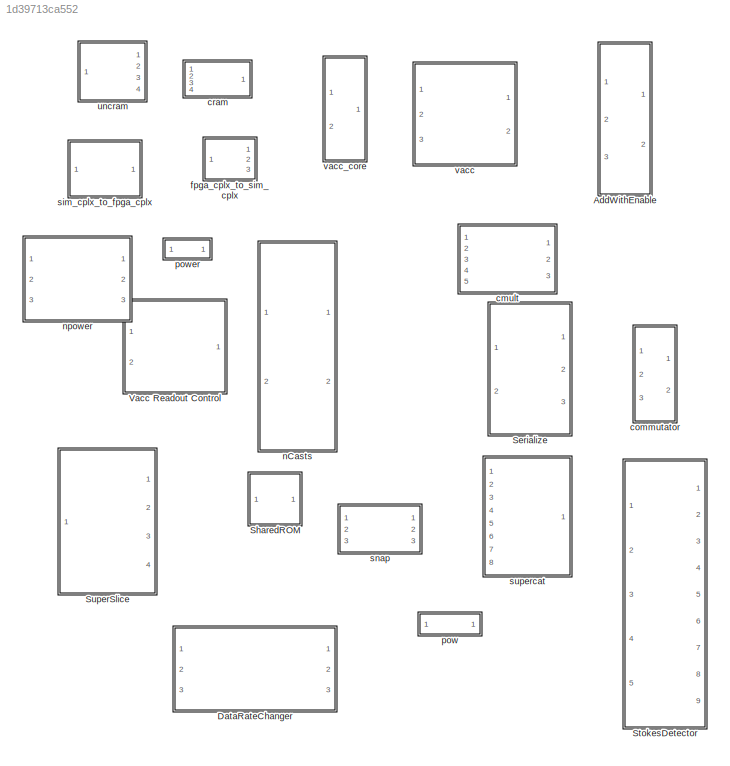
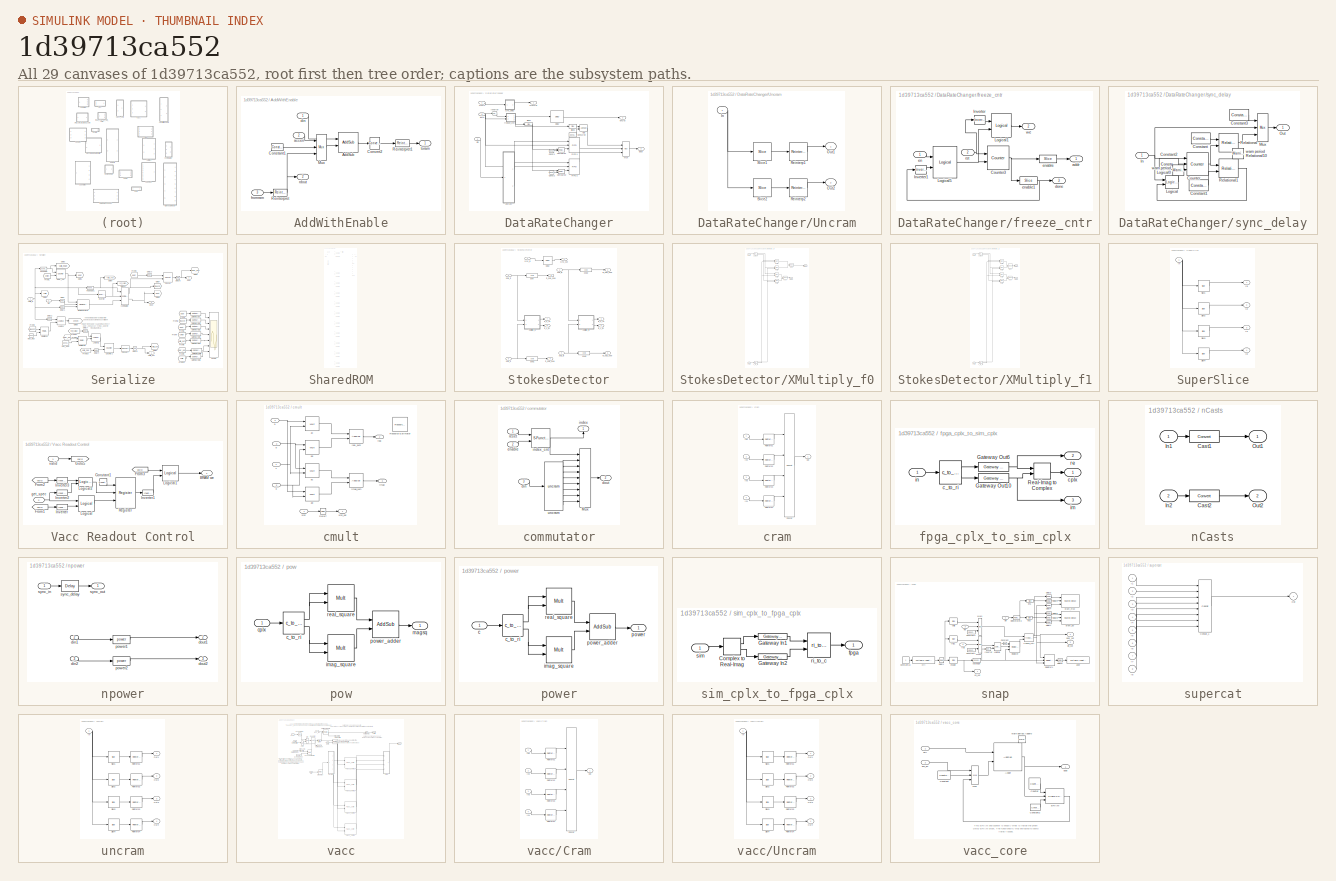
[diagram: thumbnail index - all 29 canvases of the model, root first then tree order]
MODEL slx_1d39713ca552
KIND library
CONFIG AbsTol = auto
CONFIG EnableMultiTasking = off
CONFIG FixedStep = auto
CONFIG MaxStep = auto
CONFIG MinStep = auto
CONFIG RelTol = 1e-3
CONFIG SampleTimeConstraint = Unconstrained
CONFIG Solver = VariableStepAuto
CONFIG SolverName = VariableStepAuto
CONFIG StartTime = 0.0
CONFIG StopTime = 10.0
BLOCK [SubSystem] AddWithEnable
  Ports = [3, 2]
  RequestExecContextInheritance = off
  Variant = off
BLOCK [Reference] AddWithEnable/AddSub  REF=xbsIndex_r4/AddSub
  Ports = [2, 1]
  SourceBlock = xbsIndex_r4/AddSub
  SourceType = Xilinx Adder/Subtractor Block
BLOCK [Reference] AddWithEnable/Constant1  REF=xbsIndex_r4/Constant
  Ports = [0, 1]
  SourceBlock = xbsIndex_r4/Constant
  SourceType = Xilinx Constant Block Block
BLOCK [Reference] AddWithEnable/Convert2  REF=xbsIndex_r4/Convert
  Ports = [1, 1]
  SourceBlock = xbsIndex_r4/Convert
  SourceType = Xilinx Type Converter Block
BLOCK [Reference] AddWithEnable/Mux  REF=xbsIndex_r4/Mux
  Ports = [3, 1]
  SourceBlock = xbsIndex_r4/Mux
  SourceType = Xilinx Bus Multiplexer Block
BLOCK [Reference] AddWithEnable/Reinterpret  REF=xbsIndex_r4/Reinterpret
  Ports = [1, 1]
  SourceBlock = xbsIndex_r4/Reinterpret
  SourceType = Xilinx Type Reinterpreter Block
BLOCK [Reference] AddWithEnable/Reinterpret1  REF=xbsIndex_r4/Reinterpret
  Ports = [1, 1]
  SourceBlock = xbsIndex_r4/Reinterpret
  SourceType = Xilinx Type Reinterpreter Block
BLOCK [Inport] AddWithEnable/accen
  IconDisplay = Port number
  Port = 2
BLOCK [Inport] AddWithEnable/din
  IconDisplay = Port number
BLOCK [Inport] AddWithEnable/fromram
  IconDisplay = Port number
  Port = 3
BLOCK [Outport] AddWithEnable/rdout
  IconDisplay = Port number
  Port = 2
BLOCK [Outport] AddWithEnable/toram
  IconDisplay = Port number
BLOCK [SubSystem] DataRateChanger
  AttributesFormatString = inputs=2, bit_width=8, input length=16, output rate=2^-1
  Ports = [3, 3]
  RequestExecContextInheritance = off
  UserDataPersistent = on
  Variant = off
BLOCK [Reference] DataRateChanger/Add  REF=xbsIndex_r4/AddSub
  Ports = [2, 1]
  SourceBlock = xbsIndex_r4/AddSub
  SourceType = Xilinx Adder/Subtracter Block
BLOCK [Reference] DataRateChanger/Compare1  REF=xbsIndex_r4/Relational
  Ports = [2, 1]
  SourceBlock = xbsIndex_r4/Relational
  SourceType = Xilinx Arithmetic Relational Operator Block
BLOCK [Reference] DataRateChanger/Compare2  REF=xbsIndex_r4/Relational
  Ports = [2, 1]
  SourceBlock = xbsIndex_r4/Relational
  SourceType = Xilinx Arithmetic Relational Operator Block
BLOCK [Reference] DataRateChanger/ConsOne  REF=xbsIndex_r4/Constant
  Ports = [0, 1]
  SourceBlock = xbsIndex_r4/Constant
  SourceType = Xilinx Constant Block Block
BLOCK [Reference] DataRateChanger/Const1  REF=xbsIndex_r4/Constant
  Ports = [0, 1]
  SourceBlock = xbsIndex_r4/Constant
  SourceType = Xilinx Constant Block Block
BLOCK [Reference] DataRateChanger/Const2  REF=xbsIndex_r4/Constant
  Ports = [0, 1]
  SourceBlock = xbsIndex_r4/Constant
  SourceType = Xilinx Constant Block Block
BLOCK [Reference] DataRateChanger/Delay  REF=xbsIndex_r4/Delay
  Ports = [1, 1]
  SourceBlock = xbsIndex_r4/Delay
  SourceType = Xilinx Delay Block
BLOCK [Reference] DataRateChanger/FIFO1  REF=xbsIndex_r4/FIFO
  Ports = [3, 4]
  SourceBlock = xbsIndex_r4/FIFO
  SourceType = Xilinx FIFO Block Block
BLOCK [Reference] DataRateChanger/FIFO2  REF=xbsIndex_r4/FIFO
  Ports = [3, 4]
  SourceBlock = xbsIndex_r4/FIFO
  SourceType = Xilinx FIFO Block Block
BLOCK [Reference] DataRateChanger/Inverter  REF=xbsIndex_r4/Inverter
  Ports = [1, 1]
  SourceBlock = xbsIndex_r4/Inverter
  SourceType = Xilinx Inverter Block
BLOCK [Reference] DataRateChanger/Mux  REF=xbsIndex_r4/Mux
  Ports = [3, 1]
  SourceBlock = xbsIndex_r4/Mux
  SourceType = Xilinx Bus Multiplexer Block
BLOCK [Reference] DataRateChanger/Slice1  REF=xbsIndex_r4/Slice
  Ports = [1, 1]
  SourceBlock = xbsIndex_r4/Slice
  SourceType = Xilinx Bit Slice Extractor Block
BLOCK [Reference] DataRateChanger/Slice2  REF=xbsIndex_r4/Slice
  Ports = [1, 1]
  SourceBlock = xbsIndex_r4/Slice
  SourceType = Xilinx Bit Slice Extractor Block
BLOCK [SubSystem] DataRateChanger/Uncram
  AncestorBlock = gavrt_library/uncram
  AttributesFormatString = UFix_8_0
  Ports = [1, 2]
  RequestExecContextInheritance = off
  UserDataPersistent = on
  Variant = off
BLOCK [Inport] DataRateChanger/Uncram/In
  IconDisplay = Port number
BLOCK [Outport] DataRateChanger/Uncram/Out1
  IconDisplay = Port number
BLOCK [Outport] DataRateChanger/Uncram/Out2
  IconDisplay = Port number
  Port = 2
BLOCK [Reference] DataRateChanger/Uncram/Reinterp1  REF=xbsIndex_r4/Reinterpret
  Ports = [1, 1]
  SourceBlock = xbsIndex_r4/Reinterpret
  SourceType = Xilinx Type Reinterpreter Block
BLOCK [Reference] DataRateChanger/Uncram/Reinterp2  REF=xbsIndex_r4/Reinterpret
  Ports = [1, 1]
  SourceBlock = xbsIndex_r4/Reinterpret
  SourceType = Xilinx Type Reinterpreter Block
BLOCK [Reference] DataRateChanger/Uncram/Slice1  REF=xbsIndex_r4/Slice
  Ports = [1, 1]
  SourceBlock = xbsIndex_r4/Slice
  SourceType = Xilinx Bit Slice Extractor Block
BLOCK [Reference] DataRateChanger/Uncram/Slice2  REF=xbsIndex_r4/Slice
  Ports = [1, 1]
  SourceBlock = xbsIndex_r4/Slice
  SourceType = Xilinx Bit Slice Extractor Block
BLOCK [Inport] DataRateChanger/din
  IconDisplay = Port number
  Port = 3
BLOCK [Outport] DataRateChanger/dout
  IconDisplay = Port number
  Port = 3
BLOCK [Inport] DataRateChanger/enIn
  IconDisplay = Port number
  Port = 2
BLOCK [Outport] DataRateChanger/enOut
  IconDisplay = Port number
  Port = 2
BLOCK [SubSystem] DataRateChanger/freeze_cntr
  AncestorBlock = casper_library/Misc/freeze_cntr
  Ports = [2, 3]
  RequestExecContextInheritance = off
  Variant = off
BLOCK [Reference] DataRateChanger/freeze_cntr/Counter3  REF=xbsIndex_r4/Counter
  Ports = [2, 1]
  SourceBlock = xbsIndex_r4/Counter
  SourceType = Xilinx Counter Block
BLOCK [Reference] DataRateChanger/freeze_cntr/Inverter  REF=xbsIndex_r4/Inverter
  Ports = [1, 1]
  SourceBlock = xbsIndex_r4/Inverter
  SourceType = Xilinx Inverter Block
BLOCK [Reference] DataRateChanger/freeze_cntr/Inverter1  REF=xbsIndex_r4/Inverter
  Ports = [1, 1]
  SourceBlock = xbsIndex_r4/Inverter
  SourceType = Xilinx Inverter Block
BLOCK [Reference] DataRateChanger/freeze_cntr/Logical1  REF=xbsIndex_r4/Logical
  Ports = [2, 1]
  SourceBlock = xbsIndex_r4/Logical
  SourceType = Xilinx Logical Block Block
BLOCK [Reference] DataRateChanger/freeze_cntr/Logical5  REF=xbsIndex_r4/Logical
  Ports = [2, 1]
  SourceBlock = xbsIndex_r4/Logical
  SourceType = Xilinx Logical Block Block
BLOCK [Outport] DataRateChanger/freeze_cntr/addr
  IconDisplay = Port number
BLOCK [Outport] DataRateChanger/freeze_cntr/done
  IconDisplay = Port number
  Port = 3
BLOCK [Inport] DataRateChanger/freeze_cntr/en
  IconDisplay = Port number
BLOCK [Reference] DataRateChanger/freeze_cntr/enable  REF=xbsIndex_r4/Slice
  Ports = [1, 1]
  SourceBlock = xbsIndex_r4/Slice
  SourceType = Xilinx Bit Slice Extractor Block
BLOCK [Reference] DataRateChanger/freeze_cntr/enable1  REF=xbsIndex_r4/Slice
  Ports = [1, 1]
  SourceBlock = xbsIndex_r4/Slice
  SourceType = Xilinx Bit Slice Extractor Block
BLOCK [Inport] DataRateChanger/freeze_cntr/rst
  IconDisplay = Port number
  Port = 2
BLOCK [Outport] DataRateChanger/freeze_cntr/we
  IconDisplay = Port number
  Port = 2
BLOCK [Inport] DataRateChanger/syncIn
  IconDisplay = Port number
BLOCK [Outport] DataRateChanger/syncOut
  IconDisplay = Port number
BLOCK [SubSystem] DataRateChanger/sync_delay
  AncestorBlock = casper_library/Delays/sync_delay
  Ports = [1, 1]
  RequestExecContextInheritance = off
  Variant = off
BLOCK [Reference] DataRateChanger/sync_delay/Constant  REF=xbsIndex_r4/Constant
  Ports = [0, 1]
  SourceBlock = xbsIndex_r4/Constant
  SourceType = Xilinx Constant Block Block
BLOCK [Reference] DataRateChanger/sync_delay/Constant1  REF=xbsIndex_r4/Constant
  Ports = [0, 1]
  SourceBlock = xbsIndex_r4/Constant
  SourceType = Xilinx Constant Block Block
BLOCK [Reference] DataRateChanger/sync_delay/Constant2  REF=xbsIndex_r4/Constant
  Ports = [0, 1]
  SourceBlock = xbsIndex_r4/Constant
  SourceType = Xilinx Constant Block Block
BLOCK [Reference] DataRateChanger/sync_delay/Constant3  REF=xbsIndex_r4/Constant
  Ports = [0, 1]
  SourceBlock = xbsIndex_r4/Constant
  SourceType = Xilinx Constant Block Block
BLOCK [Reference] DataRateChanger/sync_delay/Counter  REF=xbsIndex_r4/Counter
  Ports = [3, 1]
  SourceBlock = xbsIndex_r4/Counter
  SourceType = Xilinx Counter Block
BLOCK [Inport] DataRateChanger/sync_delay/In
  IconDisplay = Port number
BLOCK [Reference] DataRateChanger/sync_delay/Logical  REF=xbsIndex_r4/Logical
  Ports = [2, 1]
  SourceBlock = xbsIndex_r4/Logical
  SourceType = Xilinx Logical Block Block
BLOCK [Reference] DataRateChanger/sync_delay/Mux  REF=xbsIndex_r4/Mux
  Ports = [3, 1]
  SourceBlock = xbsIndex_r4/Mux
  SourceType = Xilinx Bus Multiplexer Block
BLOCK [Outport] DataRateChanger/sync_delay/Out
  IconDisplay = Port number
BLOCK [Reference] DataRateChanger/sync_delay/Relational  REF=xbsIndex_r4/Relational
  Ports = [2, 1]
  SourceBlock = xbsIndex_r4/Relational
  SourceType = Xilinx Arithmetic Relational Operator Block
BLOCK [Reference] DataRateChanger/sync_delay/Relational1  REF=xbsIndex_r4/Relational
  Ports = [2, 1]
  SourceBlock = xbsIndex_r4/Relational
  SourceType = Xilinx Arithmetic Relational Operator Block
BLOCK [Reference] DataRateChanger/sync_delay/warn period Logical0  REF=xbsReplacements_r4/Warning
  Ports = []
  SourceBlock = xbsReplacements_r4/Warning
  SourceType = Unknown
BLOCK [Reference] DataRateChanger/sync_delay/warn period Relational10  REF=xbsReplacements_r4/Warning
  Ports = []
  SourceBlock = xbsReplacements_r4/Warning
  SourceType = Unknown
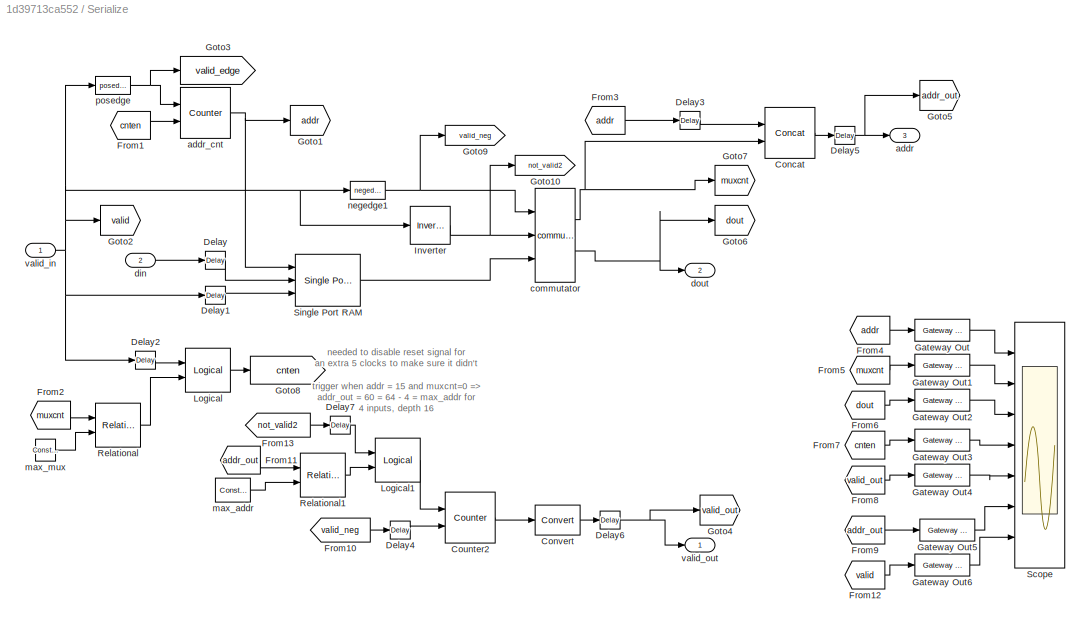
BLOCK [SubSystem] Serialize
  Ports = [2, 3]
  RequestExecContextInheritance = off
  UserDataPersistent = on
  Variant = off
BLOCK [Reference] Serialize/Concat  REF=xbsIndex_r4/Concat
  Ports = [2, 1]
  SourceBlock = xbsIndex_r4/Concat
  SourceType = Xilinx Bus Concatenator Block
BLOCK [Reference] Serialize/Convert  REF=xbsIndex_r4/Convert
  Ports = [1, 1]
  SourceBlock = xbsIndex_r4/Convert
  SourceType = Xilinx Type Converter Block
BLOCK [Reference] Serialize/Counter2  REF=xbsIndex_r4/Counter
  Ports = [2, 1]
  SourceBlock = xbsIndex_r4/Counter
  SourceType = Xilinx Counter Block
BLOCK [Reference] Serialize/Delay  REF=xbsIndex_r4/Delay
  Ports = [1, 1]
  SourceBlock = xbsIndex_r4/Delay
  SourceType = Xilinx Delay Block
BLOCK [Reference] Serialize/Delay1  REF=xbsIndex_r4/Delay
  Ports = [1, 1]
  SourceBlock = xbsIndex_r4/Delay
  SourceType = Xilinx Delay Block
BLOCK [Reference] Serialize/Delay2  REF=xbsIndex_r4/Delay
  Ports = [1, 1]
  SourceBlock = xbsIndex_r4/Delay
  SourceType = Xilinx Delay Block
BLOCK [Reference] Serialize/Delay3  REF=xbsIndex_r4/Delay
  Ports = [1, 1]
  SourceBlock = xbsIndex_r4/Delay
  SourceType = Xilinx Delay Block
BLOCK [Reference] Serialize/Delay4  REF=xbsIndex_r4/Delay
  Ports = [1, 1]
  SourceBlock = xbsIndex_r4/Delay
  SourceType = Xilinx Delay Block
BLOCK [Reference] Serialize/Delay5  REF=xbsIndex_r4/Delay
  Ports = [1, 1]
  SourceBlock = xbsIndex_r4/Delay
  SourceType = Xilinx Delay Block
BLOCK [Reference] Serialize/Delay6  REF=xbsIndex_r4/Delay
  Ports = [1, 1]
  SourceBlock = xbsIndex_r4/Delay
  SourceType = Xilinx Delay Block
BLOCK [Reference] Serialize/Delay7  REF=xbsIndex_r4/Delay
  Ports = [1, 1]
  SourceBlock = xbsIndex_r4/Delay
  SourceType = Xilinx Delay Block
BLOCK [From] Serialize/From1
  CloseFcn = tagdialog Close
  GotoTag = cnten
BLOCK [From] Serialize/From10
  CloseFcn = tagdialog Close
  GotoTag = valid_neg
BLOCK [From] Serialize/From11
  CloseFcn = tagdialog Close
  GotoTag = addr_out
BLOCK [From] Serialize/From12
  CloseFcn = tagdialog Close
  GotoTag = valid
BLOCK [From] Serialize/From13
  CloseFcn = tagdialog Close
  GotoTag = not_valid2
BLOCK [From] Serialize/From2
  CloseFcn = tagdialog Close
  GotoTag = muxcnt
BLOCK [From] Serialize/From3
  CloseFcn = tagdialog Close
  GotoTag = addr
BLOCK [From] Serialize/From4
  CloseFcn = tagdialog Close
  GotoTag = addr
BLOCK [From] Serialize/From5
  CloseFcn = tagdialog Close
  GotoTag = muxcnt
BLOCK [From] Serialize/From6
  CloseFcn = tagdialog Close
  GotoTag = dout
BLOCK [From] Serialize/From7
  CloseFcn = tagdialog Close
  GotoTag = cnten
BLOCK [From] Serialize/From8
  CloseFcn = tagdialog Close
  GotoTag = valid_out
BLOCK [From] Serialize/From9
  CloseFcn = tagdialog Close
  GotoTag = addr_out
BLOCK [Reference] Serialize/Gateway Out  REF=xbsIndex_r4/Gateway Out
  Ports = [1, 1]
  SourceBlock = xbsIndex_r4/Gateway Out
  SourceType = Xilinx Gateway Out Block
BLOCK [Reference] Serialize/Gateway Out1  REF=xbsIndex_r4/Gateway Out
  Ports = [1, 1]
  SourceBlock = xbsIndex_r4/Gateway Out
  SourceType = Xilinx Gateway Out Block
BLOCK [Reference] Serialize/Gateway Out2  REF=xbsIndex_r4/Gateway Out
  Ports = [1, 1]
  SourceBlock = xbsIndex_r4/Gateway Out
  SourceType = Xilinx Gateway Out Block
BLOCK [Reference] Serialize/Gateway Out3  REF=xbsIndex_r4/Gateway Out
  Ports = [1, 1]
  SourceBlock = xbsIndex_r4/Gateway Out
  SourceType = Xilinx Gateway Out Block
BLOCK [Reference] Serialize/Gateway Out4  REF=xbsIndex_r4/Gateway Out
  Ports = [1, 1]
  SourceBlock = xbsIndex_r4/Gateway Out
  SourceType = Xilinx Gateway Out Block
BLOCK [Reference] Serialize/Gateway Out5  REF=xbsIndex_r4/Gateway Out
  Ports = [1, 1]
  SourceBlock = xbsIndex_r4/Gateway Out
  SourceType = Xilinx Gateway Out Block
BLOCK [Reference] Serialize/Gateway Out6  REF=xbsIndex_r4/Gateway Out
  Ports = [1, 1]
  SourceBlock = xbsIndex_r4/Gateway Out
  SourceType = Xilinx Gateway Out Block
BLOCK [Goto] Serialize/Goto1
  GotoTag = addr
BLOCK [Goto] Serialize/Goto10
  GotoTag = not_valid2
BLOCK [Goto] Serialize/Goto2
  GotoTag = valid
BLOCK [Goto] Serialize/Goto3
  GotoTag = valid_edge
BLOCK [Goto] Serialize/Goto4
  GotoTag = valid_out
BLOCK [Goto] Serialize/Goto5
  GotoTag = addr_out
BLOCK [Goto] Serialize/Goto6
  GotoTag = dout
BLOCK [Goto] Serialize/Goto7
  GotoTag = muxcnt
BLOCK [Goto] Serialize/Goto8
  GotoTag = cnten
BLOCK [Goto] Serialize/Goto9
  GotoTag = valid_neg
BLOCK [Reference] Serialize/Inverter  REF=xbsIndex_r4/Inverter
  Ports = [1, 1]
  SourceBlock = xbsIndex_r4/Inverter
  SourceType = Xilinx Inverter Block
BLOCK [Reference] Serialize/Logical  REF=xbsIndex_r4/Logical
  Ports = [2, 1]
  SourceBlock = xbsIndex_r4/Logical
  SourceType = Xilinx Logical Block Block
BLOCK [Reference] Serialize/Logical1  REF=xbsIndex_r4/Logical
  Ports = [2, 1]
  SourceBlock = xbsIndex_r4/Logical
  SourceType = Xilinx Logical Block Block
BLOCK [Reference] Serialize/Relational  REF=xbsIndex_r4/Relational
  Ports = [2, 1]
  SourceBlock = xbsIndex_r4/Relational
  SourceType = Xilinx Arithmetic Relational Operator Block
BLOCK [Reference] Serialize/Relational1  REF=xbsIndex_r4/Relational
  Ports = [2, 1]
  SourceBlock = xbsIndex_r4/Relational
  SourceType = Xilinx Arithmetic Relational Operator Block
BLOCK [Scope] Serialize/Scope
  NumInputPorts = 7
  Ports = [7]
  ScopeSpecificationString = C++SS(StrPVP('Location','[1423, 107, 2703, 1007]'),StrPVP('Open','off'),StrPVP('ZoomMode','xonly'),MxPVP('AxesTitles',24,'struct(''axes1'',''%<SignalLabel>'',''axes2'',''%<SignalLabel>'',''axes3'',''%<SignalLabel>'',''axes4'',''%<SignalLabel>'',''axes5'',''%<SignalLabel>'',''axes6'',''%<SignalLabel>'',''axes7'',''%<SignalLabel>'')'),StrPVP('TimeRange','256'),StrPVP('YMin','-5~-5~-5~-5~-5~-5~-5'),S...<+200ch>
BLOCK [Reference] Serialize/Single Port RAM  REF=xbsIndex_r4/Single Port RAM
  Ports = [3, 1]
  SourceBlock = xbsIndex_r4/Single Port RAM
  SourceType = Xilinx Single Port Random Access Memory Block
BLOCK [Outport] Serialize/addr
  IconDisplay = Port number
  Port = 3
BLOCK [Reference] Serialize/addr_cnt  REF=xbsIndex_r4/Counter
  Ports = [2, 1]
  SourceBlock = xbsIndex_r4/Counter
  SourceType = Xilinx Counter Block
BLOCK [Reference] Serialize/commutator  REF=gavrt_library/commutator  (lib defined in mdl_32bd0963308d, mdl_3c21e696b527, +1 more)
  Ports = [3, 2]
  SourceBlock = gavrt_library/commutator
  SourceType = commutator
  UserDataPersistent = on
BLOCK [Inport] Serialize/din
  IconDisplay = Port number
  Port = 2
BLOCK [Outport] Serialize/dout
  IconDisplay = Port number
  Port = 2
BLOCK [Reference] Serialize/max_addr  REF=xbsIndex_r4/Constant
  Ports = [0, 1]
  SourceBlock = xbsIndex_r4/Constant
  SourceType = Xilinx Constant Block Block
BLOCK [Reference] Serialize/max_mux  REF=xbsIndex_r4/Constant
  Ports = [0, 1]
  SourceBlock = xbsIndex_r4/Constant
  SourceType = Xilinx Constant Block Block
BLOCK [Reference] Serialize/negedge1  REF=casper_library/Misc/negedge  (lib defined in mdl_138b2fc3435f, mdl_4ed325b712b3, +2 more)
  Ports = [1, 1]
  SourceBlock = casper_library/Misc/negedge
  SourceType = negedge
  Tag = Rising Edge Detector
BLOCK [Reference] Serialize/posedge  REF=casper_library/Misc/posedge  (lib defined in mdl_138b2fc3435f, mdl_4ed325b712b3, +2 more)
  Ports = [1, 1]
  SourceBlock = casper_library/Misc/posedge
  SourceType = posedge
  Tag = Rising Edge Detector
BLOCK [Inport] Serialize/valid_in
  IconDisplay = Port number
BLOCK [Outport] Serialize/valid_out
  IconDisplay = Port number
BLOCK [SubSystem] SharedROM
  Ports = [1, 1]
  RequestExecContextInheritance = off
  UserDataPersistent = on
  Variant = off
BLOCK [Reference] SharedROM/Concat  REF=xbsIndex_r4/Concat
  Ports = [11, 1]
  SourceBlock = xbsIndex_r4/Concat
  SourceType = Xilinx Bus Concatenator Block
BLOCK [S-Function] SharedROM/Convert
  AncestorBlock = xbsIndex_r3/Convert
  EnableBusSupport = off
  FunctionName = xlconvert
  Parameters = sfcn_mwsv__
  Ports = [1, 1]
  SFcnIsStateOwnerBlock = off
  SFunctionDeploymentMode = off
BLOCK [Reference] SharedROM/SharedROM0  REF=xps_library/Shared BRAM  (lib defined in mdl_00b5cec29cd0, mdl_02ab6ecaa3d1, +5 more)
  Ports = [3, 1]
  SourceBlock = xps_library/Shared BRAM
  SourceType = Unknown
  Tag = xps:bram
BLOCK [Reference] SharedROM/SharedROM1  REF=xps_library/Shared BRAM  (lib defined in mdl_00b5cec29cd0, mdl_02ab6ecaa3d1, +5 more)
  Ports = [3, 1]
  SourceBlock = xps_library/Shared BRAM
  SourceType = Unknown
  Tag = xps:bram
BLOCK [Reference] SharedROM/SharedROM10  REF=xps_library/Shared BRAM  (lib defined in mdl_00b5cec29cd0, mdl_02ab6ecaa3d1, +5 more)
  Ports = [3, 1]
  SourceBlock = xps_library/Shared BRAM
  SourceType = Unknown
  Tag = xps:bram
BLOCK [Reference] SharedROM/SharedROM2  REF=xps_library/Shared BRAM  (lib defined in mdl_00b5cec29cd0, mdl_02ab6ecaa3d1, +5 more)
  Ports = [3, 1]
  SourceBlock = xps_library/Shared BRAM
  SourceType = Unknown
  Tag = xps:bram
BLOCK [Reference] SharedROM/SharedROM3  REF=xps_library/Shared BRAM  (lib defined in mdl_00b5cec29cd0, mdl_02ab6ecaa3d1, +5 more)
  Ports = [3, 1]
  SourceBlock = xps_library/Shared BRAM
  SourceType = Unknown
  Tag = xps:bram
BLOCK [Reference] SharedROM/SharedROM4  REF=xps_library/Shared BRAM  (lib defined in mdl_00b5cec29cd0, mdl_02ab6ecaa3d1, +5 more)
  Ports = [3, 1]
  SourceBlock = xps_library/Shared BRAM
  SourceType = Unknown
  Tag = xps:bram
BLOCK [Reference] SharedROM/SharedROM5  REF=xps_library/Shared BRAM  (lib defined in mdl_00b5cec29cd0, mdl_02ab6ecaa3d1, +5 more)
  Ports = [3, 1]
  SourceBlock = xps_library/Shared BRAM
  SourceType = Unknown
  Tag = xps:bram
BLOCK [Reference] SharedROM/SharedROM6  REF=xps_library/Shared BRAM  (lib defined in mdl_00b5cec29cd0, mdl_02ab6ecaa3d1, +5 more)
  Ports = [3, 1]
  SourceBlock = xps_library/Shared BRAM
  SourceType = Unknown
  Tag = xps:bram
BLOCK [Reference] SharedROM/SharedROM7  REF=xps_library/Shared BRAM  (lib defined in mdl_00b5cec29cd0, mdl_02ab6ecaa3d1, +5 more)
  Ports = [3, 1]
  SourceBlock = xps_library/Shared BRAM
  SourceType = Unknown
  Tag = xps:bram
BLOCK [Reference] SharedROM/SharedROM8  REF=xps_library/Shared BRAM  (lib defined in mdl_00b5cec29cd0, mdl_02ab6ecaa3d1, +5 more)
  Ports = [3, 1]
  SourceBlock = xps_library/Shared BRAM
  SourceType = Unknown
  Tag = xps:bram
BLOCK [Reference] SharedROM/SharedROM9  REF=xps_library/Shared BRAM  (lib defined in mdl_00b5cec29cd0, mdl_02ab6ecaa3d1, +5 more)
  Ports = [3, 1]
  SourceBlock = xps_library/Shared BRAM
  SourceType = Unknown
  Tag = xps:bram
BLOCK [Reference] SharedROM/Slice  REF=xbsIndex_r4/Slice
  Ports = [1, 1]
  SourceBlock = xbsIndex_r4/Slice
  SourceType = Xilinx Bit Slice Extractor Block
BLOCK [Inport] SharedROM/addr
  IconDisplay = Port number
BLOCK [Reference] SharedROM/dinz  REF=xbsIndex_r4/Constant
  Ports = [0, 1]
  SourceBlock = xbsIndex_r4/Constant
  SourceType = Xilinx Constant Block Block
BLOCK [Outport] SharedROM/dout
  IconDisplay = Port number
BLOCK [Reference] SharedROM/wez  REF=xbsIndex_r4/Constant
  Ports = [0, 1]
  SourceBlock = xbsIndex_r4/Constant
  SourceType = Xilinx Constant Block Block
BLOCK [SubSystem] StokesDetector
  Ports = [5, 9]
  RequestExecContextInheritance = off
  Variant = off
BLOCK [Reference] StokesDetector/Delay  REF=xbsIndex_r4/Delay
  Ports = [1, 1]
  SourceBlock = xbsIndex_r4/Delay
  SourceType = Xilinx Delay Block
BLOCK [SubSystem] StokesDetector/XMultiply_f0
  Ports = [2, 2]
  RequestExecContextInheritance = off
  Variant = off
BLOCK [Inport] StokesDetector/XMultiply_f0/Pol1
  IconDisplay = Port number
BLOCK [Inport] StokesDetector/XMultiply_f0/Pol2
  IconDisplay = Port number
  Port = 2
BLOCK [Outport] StokesDetector/XMultiply_f0/X Imag
  IconDisplay = Port number
  Port = 2
BLOCK [Outport] StokesDetector/XMultiply_f0/X Real
  IconDisplay = Port number
BLOCK [Reference] StokesDetector/XMultiply_f0/add  REF=xbsIndex_r4/AddSub
  Ports = [2, 1]
  SourceBlock = xbsIndex_r4/AddSub
  SourceType = Xilinx Adder/Subtractor Block
BLOCK [Reference] StokesDetector/XMultiply_f0/c_to_ri  REF=casper_library/Misc/c_to_ri  (lib defined in mdl_138b2fc3435f, mdl_4ed325b712b3, +2 more)
  AttributesFormatString = 18_17 r/i
  Ports = [1, 2]
  SourceBlock = casper_library/Misc/c_to_ri
  SourceType = c_to_ri
  UserDataPersistent = on
BLOCK [Reference] StokesDetector/XMultiply_f0/c_to_ri1  REF=casper_library/Misc/c_to_ri  (lib defined in mdl_138b2fc3435f, mdl_4ed325b712b3, +2 more)
  AttributesFormatString = 18_17 r/i
  Ports = [1, 2]
  SourceBlock = casper_library/Misc/c_to_ri
  SourceType = c_to_ri
  UserDataPersistent = on
BLOCK [Reference] StokesDetector/XMultiply_f0/mult1  REF=xbsIndex_r4/Mult
  Ports = [2, 1]
  SourceBlock = xbsIndex_r4/Mult
  SourceType = Xilinx Multiplier Block
BLOCK [Reference] StokesDetector/XMultiply_f0/mult2  REF=xbsIndex_r4/Mult
  Ports = [2, 1]
  SourceBlock = xbsIndex_r4/Mult
  SourceType = Xilinx Multiplier Block
BLOCK [Reference] StokesDetector/XMultiply_f0/mult3  REF=xbsIndex_r4/Mult
  Ports = [2, 1]
  SourceBlock = xbsIndex_r4/Mult
  SourceType = Xilinx Multiplier Block
BLOCK [Reference] StokesDetector/XMultiply_f0/mult4  REF=xbsIndex_r4/Mult
  Ports = [2, 1]
  SourceBlock = xbsIndex_r4/Mult
  SourceType = Xilinx Multiplier Block
BLOCK [Reference] StokesDetector/XMultiply_f0/sub  REF=xbsIndex_r4/AddSub
  Ports = [2, 1]
  SourceBlock = xbsIndex_r4/AddSub
  SourceType = Xilinx Adder/Subtractor Block
BLOCK [SubSystem] StokesDetector/XMultiply_f1
  Ports = [2, 2]
  RequestExecContextInheritance = off
  Variant = off
BLOCK [Inport] StokesDetector/XMultiply_f1/Pol1
  IconDisplay = Port number
BLOCK [Inport] StokesDetector/XMultiply_f1/Pol2
  IconDisplay = Port number
  Port = 2
BLOCK [Outport] StokesDetector/XMultiply_f1/X Imag
  IconDisplay = Port number
  Port = 2
BLOCK [Outport] StokesDetector/XMultiply_f1/X Real
  IconDisplay = Port number
BLOCK [Reference] StokesDetector/XMultiply_f1/add  REF=xbsIndex_r4/AddSub
  Ports = [2, 1]
  SourceBlock = xbsIndex_r4/AddSub
  SourceType = Xilinx Adder/Subtractor Block
BLOCK [Reference] StokesDetector/XMultiply_f1/c_to_ri  REF=casper_library/Misc/c_to_ri  (lib defined in mdl_138b2fc3435f, mdl_4ed325b712b3, +2 more)
  AttributesFormatString = _ r/i
  Ports = [1, 2]
  SourceBlock = casper_library/Misc/c_to_ri
  SourceType = c_to_ri
  UserDataPersistent = on
BLOCK [Reference] StokesDetector/XMultiply_f1/c_to_ri1  REF=casper_library/Misc/c_to_ri  (lib defined in mdl_138b2fc3435f, mdl_4ed325b712b3, +2 more)
  AttributesFormatString = _ r/i
  Ports = [1, 2]
  SourceBlock = casper_library/Misc/c_to_ri
  SourceType = c_to_ri
  UserDataPersistent = on
BLOCK [Reference] StokesDetector/XMultiply_f1/mult1  REF=xbsIndex_r4/Mult
  Ports = [2, 1]
  SourceBlock = xbsIndex_r4/Mult
  SourceType = Xilinx Multiplier Block
BLOCK [Reference] StokesDetector/XMultiply_f1/mult2  REF=xbsIndex_r4/Mult
  Ports = [2, 1]
  SourceBlock = xbsIndex_r4/Mult
  SourceType = Xilinx Multiplier Block
BLOCK [Reference] StokesDetector/XMultiply_f1/mult3  REF=xbsIndex_r4/Mult
  Ports = [2, 1]
  SourceBlock = xbsIndex_r4/Mult
  SourceType = Xilinx Multiplier Block
BLOCK [Reference] StokesDetector/XMultiply_f1/mult4  REF=xbsIndex_r4/Mult
  Ports = [2, 1]
  SourceBlock = xbsIndex_r4/Mult
  SourceType = Xilinx Multiplier Block
BLOCK [Reference] StokesDetector/XMultiply_f1/sub  REF=xbsIndex_r4/AddSub
  Ports = [2, 1]
  SourceBlock = xbsIndex_r4/AddSub
  SourceType = Xilinx Adder/Subtractor Block
BLOCK [Outport] StokesDetector/f0_pol1_pow
  IconDisplay = Port number
  Port = 2
BLOCK [Outport] StokesDetector/f0_pol2_pow
  IconDisplay = Port number
  Port = 5
BLOCK [Outport] StokesDetector/f0_x_im
  IconDisplay = Port number
  Port = 4
BLOCK [Outport] StokesDetector/f0_x_re
  IconDisplay = Port number
  Port = 3
BLOCK [Outport] StokesDetector/f1_pol1_pow
  IconDisplay = Port number
  Port = 6
BLOCK [Outport] StokesDetector/f1_pol2_pow
  IconDisplay = Port number
  Port = 9
BLOCK [Outport] StokesDetector/f1_x_im
  IconDisplay = Port number
  Port = 8
BLOCK [Outport] StokesDetector/f1_x_re
  IconDisplay = Port number
  Port = 7
BLOCK [Inport] StokesDetector/pol1_f0
  IconDisplay = Port number
  Port = 2
BLOCK [Inport] StokesDetector/pol1_f1
  IconDisplay = Port number
  Port = 3
BLOCK [Inport] StokesDetector/pol2_f0
  IconDisplay = Port number
  Port = 4
BLOCK [Inport] StokesDetector/pol2_f1
  IconDisplay = Port number
  Port = 5
BLOCK [Reference] StokesDetector/pow  REF=gavrt_library/pow  (lib defined in mdl_32bd0963308d, mdl_3c21e696b527, +1 more)
  Ports = [1, 1]
  SourceBlock = gavrt_library/pow
  SourceType = Unknown
BLOCK [Reference] StokesDetector/pow1  REF=gavrt_library/pow  (lib defined in mdl_32bd0963308d, mdl_3c21e696b527, +1 more)
  Ports = [1, 1]
  SourceBlock = gavrt_library/pow
  SourceType = Unknown
BLOCK [Reference] StokesDetector/pow2  REF=gavrt_library/pow  (lib defined in mdl_32bd0963308d, mdl_3c21e696b527, +1 more)
  Ports = [1, 1]
  SourceBlock = gavrt_library/pow
  SourceType = Unknown
BLOCK [Reference] StokesDetector/pow3  REF=gavrt_library/pow  (lib defined in mdl_32bd0963308d, mdl_3c21e696b527, +1 more)
  Ports = [1, 1]
  SourceBlock = gavrt_library/pow
  SourceType = Unknown
BLOCK [Inport] StokesDetector/sync_in
  IconDisplay = Port number
BLOCK [Outport] StokesDetector/sync_out
  IconDisplay = Port number
BLOCK [SubSystem] SuperSlice
  Ports = [1, 4]
  RequestExecContextInheritance = off
  UserDataPersistent = on
  Variant = off
BLOCK [Inport] SuperSlice/In
  IconDisplay = Port number
BLOCK [Reference] SuperSlice/Slice1  REF=xbsIndex_r4/Slice
  Ports = [1, 1]
  SourceBlock = xbsIndex_r4/Slice
  SourceType = Xilinx Bit Slice Extractor Block
BLOCK [Reference] SuperSlice/Slice2  REF=xbsIndex_r4/Slice
  Ports = [1, 1]
  SourceBlock = xbsIndex_r4/Slice
  SourceType = Xilinx Bit Slice Extractor Block
BLOCK [Reference] SuperSlice/Slice3  REF=xbsIndex_r4/Slice
  Ports = [1, 1]
  SourceBlock = xbsIndex_r4/Slice
  SourceType = Xilinx Bit Slice Extractor Block
BLOCK [Reference] SuperSlice/Slice4  REF=xbsIndex_r4/Slice
  Ports = [1, 1]
  SourceBlock = xbsIndex_r4/Slice
  SourceType = Xilinx Bit Slice Extractor Block
BLOCK [Outport] SuperSlice/[0]
  IconDisplay = Port number
  Port = 4
BLOCK [Outport] SuperSlice/[1]
  IconDisplay = Port number
  Port = 3
BLOCK [Outport] SuperSlice/[2]
  IconDisplay = Port number
  Port = 2
BLOCK [Outport] SuperSlice/[3]
  IconDisplay = Port number
BLOCK [SubSystem] Vacc Readout Control
  Ports = [2, 1]
  RequestExecContextInheritance = off
  Variant = off
BLOCK [Outport] Vacc Readout Control/BRAM we
  IconDisplay = Port number
BLOCK [Reference] Vacc Readout Control/Constant1  REF=xbsIndex_r4/Constant
  Ports = [0, 1]
  SourceBlock = xbsIndex_r4/Constant
  SourceType = Xilinx Constant Block Block
BLOCK [From] Vacc Readout Control/From1
  CloseFcn = tagdialog Close
  GotoTag = valid
BLOCK [From] Vacc Readout Control/From2
  CloseFcn = tagdialog Close
  GotoTag = valid
BLOCK [From] Vacc Readout Control/From3
  CloseFcn = tagdialog Close
  GotoTag = valid
BLOCK [Goto] Vacc Readout Control/Goto5
  GotoTag = valid
BLOCK [Reference] Vacc Readout Control/Inverter  REF=xbsIndex_r4/Inverter
  Ports = [1, 1]
  SourceBlock = xbsIndex_r4/Inverter
  SourceType = Xilinx Inverter Block
BLOCK [Reference] Vacc Readout Control/Inverter1  REF=xbsIndex_r4/Inverter
  Ports = [1, 1]
  SourceBlock = xbsIndex_r4/Inverter
  SourceType = Xilinx Inverter Block
BLOCK [Reference] Vacc Readout Control/Inverter2  REF=xbsIndex_r4/Inverter
  Ports = [1, 1]
  SourceBlock = xbsIndex_r4/Inverter
  SourceType = Xilinx Inverter Block
BLOCK [Reference] Vacc Readout Control/Inverter3  REF=xbsIndex_r4/Inverter
  Ports = [1, 1]
  SourceBlock = xbsIndex_r4/Inverter
  SourceType = Xilinx Inverter Block
BLOCK [Reference] Vacc Readout Control/Logical  REF=xbsIndex_r4/Logical
  Ports = [2, 1]
  SourceBlock = xbsIndex_r4/Logical
  SourceType = Xilinx Logical Block Block
BLOCK [Reference] Vacc Readout Control/Logical1  REF=xbsIndex_r4/Logical
  Ports = [2, 1]
  SourceBlock = xbsIndex_r4/Logical
  SourceType = Xilinx Logical Block Block
BLOCK [Reference] Vacc Readout Control/Logical2  REF=xbsIndex_r4/Logical
  Ports = [2, 1]
  SourceBlock = xbsIndex_r4/Logical
  SourceType = Xilinx Logical Block Block
BLOCK [Reference] Vacc Readout Control/Register  REF=xbsIndex_r4/Register
  Ports = [3, 1]
  SourceBlock = xbsIndex_r4/Register
  SourceType = Xilinx Register Block
BLOCK [Inport] Vacc Readout Control/get_spec
  IconDisplay = Port number
  Port = 2
BLOCK [Inport] Vacc Readout Control/valid
  IconDisplay = Port number
BLOCK [SubSystem] cmult
  Ports = [5, 3]
  RequestExecContextInheritance = off
  Variant = off
BLOCK [Reference] cmult/Delay7  REF=xbsIndex_r4/Delay
  Ports = [1, 1]
  SourceBlock = xbsIndex_r4/Delay
  SourceType = Xilinx Delay Block
BLOCK [Reference] cmult/Resource Estimator  REF=xbsIndex_r4/Resource Estimator
  AttributesFormatString = Resource\nEstimator
  Ports = []
  SourceBlock = xbsIndex_r4/Resource Estimator
  SourceType = Xilinx Resource Estimator Block
  Tag = resEstTag
BLOCK [Inport] cmult/a
  IconDisplay = Port number
  Port = 2
BLOCK [Reference] cmult/ac  REF=xbsIndex_r4/Mult
  Ports = [2, 1]
  SourceBlock = xbsIndex_r4/Mult
  SourceType = Xilinx Multiplier Block
BLOCK [Reference] cmult/ad  REF=xbsIndex_r4/Mult
  Ports = [2, 1]
  SourceBlock = xbsIndex_r4/Mult
  SourceType = Xilinx Multiplier Block
BLOCK [Inport] cmult/b
  IconDisplay = Port number
  Port = 3
BLOCK [Reference] cmult/bc  REF=xbsIndex_r4/Mult
  Ports = [2, 1]
  SourceBlock = xbsIndex_r4/Mult
  SourceType = Xilinx Multiplier Block
BLOCK [Reference] cmult/bd  REF=xbsIndex_r4/Mult
  Ports = [2, 1]
  SourceBlock = xbsIndex_r4/Mult
  SourceType = Xilinx Multiplier Block
BLOCK [Inport] cmult/c
  IconDisplay = Port number
  Port = 4
BLOCK [Inport] cmult/d
  IconDisplay = Port number
  Port = 5
BLOCK [Outport] cmult/imag
  IconDisplay = Port number
  Port = 3
BLOCK [Reference] cmult/imag_sum  REF=xbsIndex_r4/AddSub
  Ports = [2, 1]
  SourceBlock = xbsIndex_r4/AddSub
  SourceType = Xilinx Adder/Subtractor Block
BLOCK [Outport] cmult/real
  IconDisplay = Port number
  Port = 2
BLOCK [Reference] cmult/real_sum  REF=xbsIndex_r4/AddSub
  Ports = [2, 1]
  SourceBlock = xbsIndex_r4/AddSub
  SourceType = Xilinx Adder/Subtractor Block
BLOCK [Inport] cmult/sync
  IconDisplay = Port number
BLOCK [Outport] cmult/sync_out
  IconDisplay = Port number
BLOCK [SubSystem] commutator
  Ports = [3, 2]
  RequestExecContextInheritance = off
  UserDataPersistent = on
  Variant = off
BLOCK [S-Function] commutator/Mux
  AncestorBlock = xbsIndex_r3/Mux
  EnableBusSupport = off
  FunctionName = xlmux
  Parameters = sfcn_mwsv__
  Ports = [9, 1]
  SFcnIsStateOwnerBlock = off
  SFunctionDeploymentMode = off
BLOCK [Inport] commutator/din
  IconDisplay = Port number
  Port = 3
BLOCK [Outport] commutator/dout
  IconDisplay = Port number
  Port = 2
BLOCK [Inport] commutator/enable
  IconDisplay = Port number
  Port = 2
BLOCK [Outport] commutator/index
  IconDisplay = Port number
BLOCK [S-Function] commutator/index_cnt
  AncestorBlock = xbsIndex_r3/Counter
  EnableBusSupport = off
  FunctionName = xlcounter
  Parameters = sfcn_mwsv__
  Ports = [2, 1]
  SFcnIsStateOwnerBlock = off
  SFunctionDeploymentMode = off
BLOCK [Inport] commutator/reset
  IconDisplay = Port number
BLOCK [Reference] commutator/uncram  REF=gavrt_library/uncram  (lib defined in mdl_32bd0963308d, mdl_3c21e696b527, +1 more)
  AttributesFormatString = UFix_32_0
  Ports = [1, 8]
  SourceBlock = gavrt_library/uncram
  SourceType = uncram
  UserDataPersistent = on
BLOCK [SubSystem] cram
  Ports = [4, 1]
  RequestExecContextInheritance = off
  UserDataPersistent = on
  Variant = off
BLOCK [Reference] cram/Concat  REF=xbsIndex_r4/Concat
  Ports = [4, 1]
  SourceBlock = xbsIndex_r4/Concat
  SourceType = Xilinx Bus Concatenator Block
BLOCK [Inport] cram/In1
  IconDisplay = Port number
BLOCK [Inport] cram/In2
  IconDisplay = Port number
  Port = 2
BLOCK [Inport] cram/In3
  IconDisplay = Port number
  Port = 3
BLOCK [Inport] cram/In4
  IconDisplay = Port number
  Port = 4
BLOCK [Outport] cram/Out
  IconDisplay = Port number
BLOCK [Reference] cram/Reinterp1  REF=xbsIndex_r4/Reinterpret
  Ports = [1, 1]
  SourceBlock = xbsIndex_r4/Reinterpret
  SourceType = Xilinx Type Reinterpreter Block
BLOCK [Reference] cram/Reinterp2  REF=xbsIndex_r4/Reinterpret
  Ports = [1, 1]
  SourceBlock = xbsIndex_r4/Reinterpret
  SourceType = Xilinx Type Reinterpreter Block
BLOCK [Reference] cram/Reinterp3  REF=xbsIndex_r4/Reinterpret
  Ports = [1, 1]
  SourceBlock = xbsIndex_r4/Reinterpret
  SourceType = Xilinx Type Reinterpreter Block
BLOCK [Reference] cram/Reinterp4  REF=xbsIndex_r4/Reinterpret
  Ports = [1, 1]
  SourceBlock = xbsIndex_r4/Reinterpret
  SourceType = Xilinx Type Reinterpreter Block
BLOCK [SubSystem] fpga_cplx_to_sim_cplx
  AttributesFormatString = 18_17 bit
  Ports = [1, 3]
  RequestExecContextInheritance = off
  Variant = off
BLOCK [Reference] fpga_cplx_to_sim_cplx/Gateway Out10  REF=xbsIndex_r4/Gateway Out
  Ports = [1, 1]
  SourceBlock = xbsIndex_r4/Gateway Out
  SourceType = Xilinx Gateway Out Block
BLOCK [Reference] fpga_cplx_to_sim_cplx/Gateway Out6  REF=xbsIndex_r4/Gateway Out
  Ports = [1, 1]
  SourceBlock = xbsIndex_r4/Gateway Out
  SourceType = Xilinx Gateway Out Block
BLOCK [RealImagToComplex] fpga_cplx_to_sim_cplx/Real-Imag to Complex
  Ports = [2, 1]
BLOCK [Reference] fpga_cplx_to_sim_cplx/c_to_ri  REF=casper_library/Misc/c_to_ri  (lib defined in mdl_138b2fc3435f, mdl_4ed325b712b3, +2 more)
  AttributesFormatString = 18_17 r/i
  Ports = [1, 2]
  SourceBlock = casper_library/Misc/c_to_ri
  SourceType = c_to_ri
  UserDataPersistent = on
BLOCK [Outport] fpga_cplx_to_sim_cplx/cplx
  IconDisplay = Port number
BLOCK [Outport] fpga_cplx_to_sim_cplx/im
  IconDisplay = Port number
  Port = 3
BLOCK [Inport] fpga_cplx_to_sim_cplx/in
  IconDisplay = Port number
BLOCK [Outport] fpga_cplx_to_sim_cplx/re
  IconDisplay = Port number
  Port = 2
BLOCK [SubSystem] nCasts
  Ports = [2, 2]
  RequestExecContextInheritance = off
  UserDataPersistent = on
  Variant = off
BLOCK [Reference] nCasts/Cast1  REF=xbsIndex_r4/Convert
  Ports = [1, 1]
  SourceBlock = xbsIndex_r4/Convert
  SourceType = Xilinx Type Converter Block
BLOCK [Reference] nCasts/Cast2  REF=xbsIndex_r4/Convert
  Ports = [1, 1]
  SourceBlock = xbsIndex_r4/Convert
  SourceType = Xilinx Type Converter Block
BLOCK [Inport] nCasts/In1
  IconDisplay = Port number
BLOCK [Inport] nCasts/In2
  IconDisplay = Port number
  Port = 2
BLOCK [Outport] nCasts/Out1
  IconDisplay = Port number
BLOCK [Outport] nCasts/Out2
  IconDisplay = Port number
  Port = 2
BLOCK [SubSystem] npower
  AttributesFormatString = latency=5
  Ports = [3, 3]
  RequestExecContextInheritance = off
  UserDataPersistent = on
  Variant = off
BLOCK [Inport] npower/din1
  IconDisplay = Port number
  Port = 2
BLOCK [Inport] npower/din2
  IconDisplay = Port number
  Port = 3
BLOCK [Outport] npower/dout1
  IconDisplay = Port number
  Port = 2
BLOCK [Outport] npower/dout2
  IconDisplay = Port number
  Port = 3
BLOCK [Reference] npower/power1  REF=gavrt_library/power  (lib defined in mdl_32bd0963308d, mdl_3c21e696b527, +1 more)
  Ports = [1, 1]
  SourceBlock = gavrt_library/power
BLOCK [Reference] npower/power2  REF=gavrt_library/power  (lib defined in mdl_32bd0963308d, mdl_3c21e696b527, +1 more)
  Ports = [1, 1]
  SourceBlock = gavrt_library/power
BLOCK [Reference] npower/sync_delay  REF=xbsIndex_r4/Delay
  Ports = [1, 1]
  SourceBlock = xbsIndex_r4/Delay
  SourceType = Xilinx Delay Block
BLOCK [Inport] npower/sync_in
  IconDisplay = Port number
BLOCK [Outport] npower/sync_out
  IconDisplay = Port number
BLOCK [SubSystem] pow
  Ports = [1, 1]
  RequestExecContextInheritance = off
  Variant = off
BLOCK [Reference] pow/c_to_ri  REF=casper_library/Misc/c_to_ri  (lib defined in mdl_138b2fc3435f, mdl_4ed325b712b3, +2 more)
  AttributesFormatString = _ r/i
  Ports = [1, 2]
  SourceBlock = casper_library/Misc/c_to_ri
  SourceType = c_to_ri
  UserDataPersistent = on
BLOCK [Inport] pow/cplx
  IconDisplay = Port number
BLOCK [Reference] pow/imag_square  REF=xbsIndex_r4/Mult
  Ports = [2, 1]
  SourceBlock = xbsIndex_r4/Mult
  SourceType = Xilinx Multiplier Block
BLOCK [Outport] pow/magsq
  IconDisplay = Port number
BLOCK [Reference] pow/power_adder  REF=xbsIndex_r4/AddSub
  Ports = [2, 1]
  SourceBlock = xbsIndex_r4/AddSub
  SourceType = Xilinx Adder/Subtractor Block
BLOCK [Reference] pow/real_square  REF=xbsIndex_r4/Mult
  Ports = [2, 1]
  SourceBlock = xbsIndex_r4/Mult
  SourceType = Xilinx Multiplier Block
BLOCK [SubSystem] power
  Ports = [1, 1]
  RequestExecContextInheritance = off
  Variant = off
BLOCK [Inport] power/c
  IconDisplay = Port number
BLOCK [Reference] power/c_to_ri  REF=casper_library/Misc/c_to_ri  (lib defined in mdl_138b2fc3435f, mdl_4ed325b712b3, +2 more)
  AttributesFormatString = _ r/i
  Ports = [1, 2]
  SourceBlock = casper_library/Misc/c_to_ri
  SourceType = c_to_ri
  UserDataPersistent = on
BLOCK [Reference] power/imag_square  REF=xbsIndex_r4/Mult
  Ports = [2, 1]
  SourceBlock = xbsIndex_r4/Mult
  SourceType = Xilinx Multiplier Block
BLOCK [Outport] power/power
  IconDisplay = Port number
BLOCK [Reference] power/power_adder  REF=xbsIndex_r4/AddSub
  Ports = [2, 1]
  SourceBlock = xbsIndex_r4/AddSub
  SourceType = Xilinx Adder/Subtractor Block
BLOCK [Reference] power/real_square  REF=xbsIndex_r4/Mult
  Ports = [2, 1]
  SourceBlock = xbsIndex_r4/Mult
  SourceType = Xilinx Multiplier Block
BLOCK [SubSystem] sim_cplx_to_fpga_cplx
  AttributesFormatString = 18_17 bit
  Ports = [1, 1]
  RequestExecContextInheritance = off
  Variant = off
BLOCK [ComplexToRealImag] sim_cplx_to_fpga_cplx/Complex to Real-Imag
  Ports = [1, 2]
BLOCK [Reference] sim_cplx_to_fpga_cplx/Gateway In1  REF=xbsIndex_r4/Gateway In
  Ports = [1, 1]
  SourceBlock = xbsIndex_r4/Gateway In
  SourceType = Xilinx Gateway In Block
BLOCK [Reference] sim_cplx_to_fpga_cplx/Gateway In2  REF=xbsIndex_r4/Gateway In
  Ports = [1, 1]
  SourceBlock = xbsIndex_r4/Gateway In
  SourceType = Xilinx Gateway In Block
BLOCK [Outport] sim_cplx_to_fpga_cplx/fpga
  IconDisplay = Port number
BLOCK [Reference] sim_cplx_to_fpga_cplx/ri_to_c  REF=casper_library/Misc/ri_to_c  (lib defined in mdl_138b2fc3435f, mdl_4ed325b712b3, +2 more)
  Ports = [2, 1]
  SourceBlock = casper_library/Misc/ri_to_c
  SourceType = ri_to_c
  UserDataPersistent = on
BLOCK [Inport] sim_cplx_to_fpga_cplx/sim
  IconDisplay = Port number
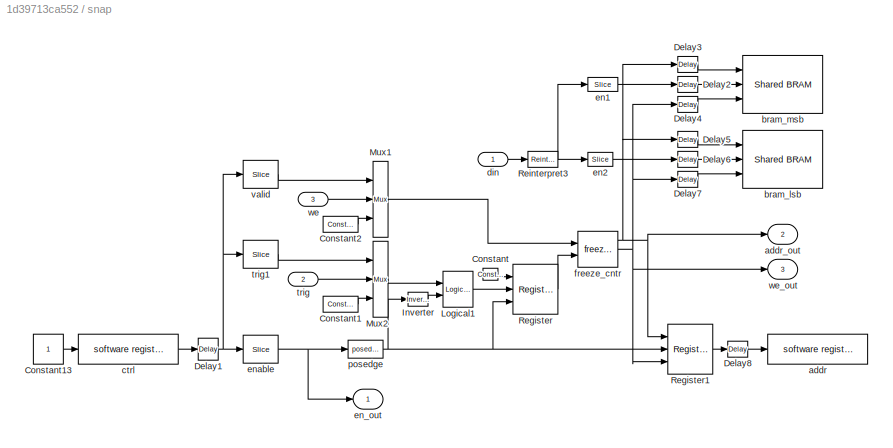
BLOCK [SubSystem] snap
  Ports = [3, 3]
  RequestExecContextInheritance = off
  Variant = off
BLOCK [Reference] snap/Constant  REF=xbsIndex_r4/Constant
  Ports = [0, 1]
  SourceBlock = xbsIndex_r4/Constant
  SourceType = Xilinx Constant Block Block
BLOCK [Reference] snap/Constant1  REF=xbsIndex_r4/Constant
  Ports = [0, 1]
  SourceBlock = xbsIndex_r4/Constant
  SourceType = Xilinx Constant Block Block
BLOCK [Constant] snap/Constant13
BLOCK [Reference] snap/Constant2  REF=xbsIndex_r4/Constant
  Ports = [0, 1]
  SourceBlock = xbsIndex_r4/Constant
  SourceType = Xilinx Constant Block Block
BLOCK [Reference] snap/Delay1  REF=xbsIndex_r4/Delay
  Ports = [1, 1]
  SourceBlock = xbsIndex_r4/Delay
  SourceType = Xilinx Delay Block
BLOCK [Reference] snap/Delay2  REF=xbsIndex_r4/Delay
  Ports = [1, 1]
  SourceBlock = xbsIndex_r4/Delay
  SourceType = Xilinx Delay Block
BLOCK [Reference] snap/Delay3  REF=xbsIndex_r4/Delay
  Ports = [1, 1]
  SourceBlock = xbsIndex_r4/Delay
  SourceType = Xilinx Delay Block
BLOCK [Reference] snap/Delay4  REF=xbsIndex_r4/Delay
  Ports = [1, 1]
  SourceBlock = xbsIndex_r4/Delay
  SourceType = Xilinx Delay Block
BLOCK [Reference] snap/Delay5  REF=xbsIndex_r4/Delay
  Ports = [1, 1]
  SourceBlock = xbsIndex_r4/Delay
  SourceType = Xilinx Delay Block
BLOCK [Reference] snap/Delay6  REF=xbsIndex_r4/Delay
  Ports = [1, 1]
  SourceBlock = xbsIndex_r4/Delay
  SourceType = Xilinx Delay Block
BLOCK [Reference] snap/Delay7  REF=xbsIndex_r4/Delay
  Ports = [1, 1]
  SourceBlock = xbsIndex_r4/Delay
  SourceType = Xilinx Delay Block
BLOCK [Reference] snap/Delay8  REF=xbsIndex_r4/Delay
  Ports = [1, 1]
  SourceBlock = xbsIndex_r4/Delay
  SourceType = Xilinx Delay Block
BLOCK [Reference] snap/Inverter  REF=xbsIndex_r4/Inverter
  Ports = [1, 1]
  SourceBlock = xbsIndex_r4/Inverter
  SourceType = Xilinx Inverter Block
BLOCK [Reference] snap/Logical1  REF=xbsIndex_r4/Logical
  Ports = [2, 1]
  SourceBlock = xbsIndex_r4/Logical
  SourceType = Xilinx Logical Block Block
BLOCK [Reference] snap/Mux1  REF=xbsIndex_r4/Mux
  Ports = [3, 1]
  SourceBlock = xbsIndex_r4/Mux
  SourceType = Xilinx Bus Multiplexer Block
BLOCK [Reference] snap/Mux2  REF=xbsIndex_r4/Mux
  Ports = [3, 1]
  SourceBlock = xbsIndex_r4/Mux
  SourceType = Xilinx Bus Multiplexer Block
BLOCK [Reference] snap/Register  REF=xbsIndex_r4/Register
  Ports = [3, 1]
  SourceBlock = xbsIndex_r4/Register
  SourceType = Xilinx Register Block
BLOCK [Reference] snap/Register1  REF=xbsIndex_r4/Register
  Ports = [3, 1]
  SourceBlock = xbsIndex_r4/Register
  SourceType = Xilinx Register Block
BLOCK [Reference] snap/Reinterpret3  REF=xbsIndex_r4/Reinterpret
  Ports = [1, 1]
  SourceBlock = xbsIndex_r4/Reinterpret
  SourceType = Xilinx Type Reinterpreter Block
BLOCK [Reference] snap/addr  REF=xps_library/software register  (lib defined in mdl_00b5cec29cd0, mdl_02ab6ecaa3d1, +5 more)
  Ports = [1, 1]
  SourceBlock = xps_library/software register
  SourceType = Unknown
  Tag = xps:sw_reg
BLOCK [Outport] snap/addr_out
  IconDisplay = Port number
  Port = 2
BLOCK [Reference] snap/bram_lsb  REF=xps_library/Shared BRAM  (lib defined in mdl_00b5cec29cd0, mdl_02ab6ecaa3d1, +5 more)
  Ports = [3, 1]
  SourceBlock = xps_library/Shared BRAM
  SourceType = Unknown
  Tag = xps:bram
BLOCK [Reference] snap/bram_msb  REF=xps_library/Shared BRAM  (lib defined in mdl_00b5cec29cd0, mdl_02ab6ecaa3d1, +5 more)
  Ports = [3, 1]
  SourceBlock = xps_library/Shared BRAM
  SourceType = Unknown
  Tag = xps:bram
BLOCK [Reference] snap/ctrl  REF=xps_library/software register  (lib defined in mdl_00b5cec29cd0, mdl_02ab6ecaa3d1, +5 more)
  Ports = [1, 1]
  SourceBlock = xps_library/software register
  SourceType = Unknown
  Tag = xps:sw_reg
BLOCK [Inport] snap/din
  IconDisplay = Port number
BLOCK [Reference] snap/en1  REF=xbsIndex_r4/Slice
  Ports = [1, 1]
  SourceBlock = xbsIndex_r4/Slice
  SourceType = Xilinx Bit Slice Extractor Block
BLOCK [Reference] snap/en2  REF=xbsIndex_r4/Slice
  Ports = [1, 1]
  SourceBlock = xbsIndex_r4/Slice
  SourceType = Xilinx Bit Slice Extractor Block
BLOCK [Outport] snap/en_out
  IconDisplay = Port number
BLOCK [Reference] snap/enable  REF=xbsIndex_r4/Slice
  Ports = [1, 1]
  SourceBlock = xbsIndex_r4/Slice
  SourceType = Xilinx Bit Slice Extractor Block
BLOCK [Reference] snap/freeze_cntr  REF=casper_library/Misc/freeze_cntr  (lib defined in mdl_138b2fc3435f, mdl_4ed325b712b3, +2 more)
  Ports = [2, 3]
  SourceBlock = casper_library/Misc/freeze_cntr
  SourceType = freeze_cntr
BLOCK [Reference] snap/posedge  REF=casper_library/Misc/posedge  (lib defined in mdl_138b2fc3435f, mdl_4ed325b712b3, +2 more)
  Ports = [1, 1]
  SourceBlock = casper_library/Misc/posedge
  SourceType = posedge
  Tag = Rising Edge Detector
BLOCK [Inport] snap/trig
  IconDisplay = Port number
  Port = 2
BLOCK [Reference] snap/trig1  REF=xbsIndex_r4/Slice
  Ports = [1, 1]
  SourceBlock = xbsIndex_r4/Slice
  SourceType = Xilinx Bit Slice Extractor Block
BLOCK [Reference] snap/valid  REF=xbsIndex_r4/Slice
  Ports = [1, 1]
  SourceBlock = xbsIndex_r4/Slice
  SourceType = Xilinx Bit Slice Extractor Block
BLOCK [Inport] snap/we
  IconDisplay = Port number
  Port = 3
BLOCK [Outport] snap/we_out
  IconDisplay = Port number
  Port = 3
BLOCK [SubSystem] supercat
  Ports = [8, 1]
  RequestExecContextInheritance = off
  UserDataPersistent = on
  Variant = off
BLOCK [Reference] supercat/Concat_1  REF=xbsIndex_r4/Concat
  Ports = [8, 1]
  SourceBlock = xbsIndex_r4/Concat
  SourceType = Xilinx Bus Concatenator Block
BLOCK [Outport] supercat/Out
  IconDisplay = Port number
BLOCK [Inport] supercat/i1
  IconDisplay = Port number
BLOCK [Inport] supercat/i2
  IconDisplay = Port number
  Port = 2
BLOCK [Inport] supercat/i3
  IconDisplay = Port number
  Port = 3
BLOCK [Inport] supercat/i4
  IconDisplay = Port number
  Port = 4
BLOCK [Inport] supercat/i5
  IconDisplay = Port number
  Port = 5
BLOCK [Inport] supercat/i6
  IconDisplay = Port number
  Port = 6
BLOCK [Inport] supercat/i7
  IconDisplay = Port number
  Port = 7
BLOCK [Inport] supercat/i8
  IconDisplay = Port number
  Port = 8
BLOCK [SubSystem] uncram
  AttributesFormatString = Fix_18_17
  Ports = [1, 4]
  RequestExecContextInheritance = off
  UserDataPersistent = on
  Variant = off
BLOCK [Inport] uncram/In
  IconDisplay = Port number
BLOCK [Outport] uncram/Out1
  IconDisplay = Port number
BLOCK [Outport] uncram/Out2
  IconDisplay = Port number
  Port = 2
BLOCK [Outport] uncram/Out3
  IconDisplay = Port number
  Port = 3
BLOCK [Outport] uncram/Out4
  IconDisplay = Port number
  Port = 4
BLOCK [Reference] uncram/Reinterp1  REF=xbsIndex_r4/Reinterpret
  Ports = [1, 1]
  SourceBlock = xbsIndex_r4/Reinterpret
  SourceType = Xilinx Type Reinterpreter Block
BLOCK [Reference] uncram/Reinterp2  REF=xbsIndex_r4/Reinterpret
  Ports = [1, 1]
  SourceBlock = xbsIndex_r4/Reinterpret
  SourceType = Xilinx Type Reinterpreter Block
BLOCK [Reference] uncram/Reinterp3  REF=xbsIndex_r4/Reinterpret
  Ports = [1, 1]
  SourceBlock = xbsIndex_r4/Reinterpret
  SourceType = Xilinx Type Reinterpreter Block
BLOCK [Reference] uncram/Reinterp4  REF=xbsIndex_r4/Reinterpret
  Ports = [1, 1]
  SourceBlock = xbsIndex_r4/Reinterpret
  SourceType = Xilinx Type Reinterpreter Block
BLOCK [Reference] uncram/Slice1  REF=xbsIndex_r4/Slice
  Ports = [1, 1]
  SourceBlock = xbsIndex_r4/Slice
  SourceType = Xilinx Bit Slice Extractor Block
BLOCK [Reference] uncram/Slice2  REF=xbsIndex_r4/Slice
  Ports = [1, 1]
  SourceBlock = xbsIndex_r4/Slice
  SourceType = Xilinx Bit Slice Extractor Block
BLOCK [Reference] uncram/Slice3  REF=xbsIndex_r4/Slice
  Ports = [1, 1]
  SourceBlock = xbsIndex_r4/Slice
  SourceType = Xilinx Bit Slice Extractor Block
BLOCK [Reference] uncram/Slice4  REF=xbsIndex_r4/Slice
  Ports = [1, 1]
  SourceBlock = xbsIndex_r4/Slice
  SourceType = Xilinx Bit Slice Extractor Block
BLOCK [SubSystem] vacc
  AttributesFormatString = vector length=32, inputs=4\nmax accumulations=2^5
  Ports = [3, 2]
  RequestExecContextInheritance = off
  UserDataPersistent = on
  Variant = off
BLOCK [Reference] vacc/AND  REF=xbsIndex_r4/Logical
  Ports = [2, 1]
  SourceBlock = xbsIndex_r4/Logical
  SourceType = Xilinx Logical Block Block
BLOCK [Reference] vacc/AccEnCompare  REF=xbsIndex_r4/Relational
  Ports = [2, 1]
  SourceBlock = xbsIndex_r4/Relational
  SourceType = Xilinx Arithmetic Relational Operator Block
BLOCK [Reference] vacc/Counter  REF=xbsIndex_r4/Counter
  Ports = [1, 1]
  SourceBlock = xbsIndex_r4/Counter
  SourceType = Xilinx Counter Block
BLOCK [SubSystem] vacc/Cram
  AncestorBlock = gavrt_library/cram
  Ports = [4, 1]
  RequestExecContextInheritance = off
  UserDataPersistent = on
  Variant = off
BLOCK [Reference] vacc/Cram/Concat  REF=xbsIndex_r4/Concat
  Ports = [4, 1]
  SourceBlock = xbsIndex_r4/Concat
  SourceType = Xilinx Bus Concatenator Block
BLOCK [Inport] vacc/Cram/In1
  IconDisplay = Port number
BLOCK [Inport] vacc/Cram/In2
  IconDisplay = Port number
  Port = 2
BLOCK [Inport] vacc/Cram/In3
  IconDisplay = Port number
  Port = 3
BLOCK [Inport] vacc/Cram/In4
  IconDisplay = Port number
  Port = 4
BLOCK [Outport] vacc/Cram/Out
  IconDisplay = Port number
BLOCK [Reference] vacc/Cram/Reinterp1  REF=xbsIndex_r4/Reinterpret
  Ports = [1, 1]
  SourceBlock = xbsIndex_r4/Reinterpret
  SourceType = Xilinx Type Reinterpreter Block
BLOCK [Reference] vacc/Cram/Reinterp2  REF=xbsIndex_r4/Reinterpret
  Ports = [1, 1]
  SourceBlock = xbsIndex_r4/Reinterpret
  SourceType = Xilinx Type Reinterpreter Block
BLOCK [Reference] vacc/Cram/Reinterp3  REF=xbsIndex_r4/Reinterpret
  Ports = [1, 1]
  SourceBlock = xbsIndex_r4/Reinterpret
  SourceType = Xilinx Type Reinterpreter Block
BLOCK [Reference] vacc/Cram/Reinterp4  REF=xbsIndex_r4/Reinterpret
  Ports = [1, 1]
  SourceBlock = xbsIndex_r4/Reinterpret
  SourceType = Xilinx Type Reinterpreter Block
BLOCK [Reference] vacc/DinDelay  REF=xbsIndex_r4/Delay
  Ports = [1, 1]
  SourceBlock = xbsIndex_r4/Delay
  SourceType = Xilinx Delay Block
BLOCK [From] vacc/FromCount
  CloseFcn = tagdialog Close
  GotoTag = count
BLOCK [From] vacc/FromValid
  CloseFcn = tagdialog Close
  GotoTag = valid
BLOCK [Goto] vacc/GotoCount
  GotoTag = count
BLOCK [Goto] vacc/GotoValid
  GotoTag = valid
BLOCK [Reference] vacc/OR  REF=xbsIndex_r4/Logical
  Ports = [2, 1]
  SourceBlock = xbsIndex_r4/Logical
  SourceType = Xilinx Logical Block Block
BLOCK [Reference] vacc/Slice  REF=xbsIndex_r4/Slice
  Ports = [1, 1]
  SourceBlock = xbsIndex_r4/Slice
  SourceType = Xilinx Bit Slice Extractor Block
BLOCK [Reference] vacc/SliceLow  REF=xbsIndex_r4/Slice
  Ports = [1, 1]
  SourceBlock = xbsIndex_r4/Slice
  SourceType = Xilinx Bit Slice Extractor Block
BLOCK [Reference] vacc/SyncCompare  REF=xbsIndex_r4/Relational
  Ports = [2, 1]
  SourceBlock = xbsIndex_r4/Relational
  SourceType = Xilinx Arithmetic Relational Operator Block
BLOCK [Reference] vacc/SyncConst  REF=xbsIndex_r4/Constant
  Ports = [0, 1]
  SourceBlock = xbsIndex_r4/Constant
  SourceType = Xilinx Constant Block Block
BLOCK [Reference] vacc/SyncDelay  REF=xbsIndex_r4/Delay
  Ports = [1, 1]
  SourceBlock = xbsIndex_r4/Delay
  SourceType = Xilinx Delay Block
BLOCK [SubSystem] vacc/Uncram
  AncestorBlock = gavrt_library/uncram
  AttributesFormatString = UFix_18_17
  Ports = [1, 4]
  RequestExecContextInheritance = off
  UserDataPersistent = on
  Variant = off
BLOCK [Inport] vacc/Uncram/In
  IconDisplay = Port number
BLOCK [Outport] vacc/Uncram/Out1
  IconDisplay = Port number
BLOCK [Outport] vacc/Uncram/Out2
  IconDisplay = Port number
  Port = 2
BLOCK [Outport] vacc/Uncram/Out3
  IconDisplay = Port number
  Port = 3
BLOCK [Outport] vacc/Uncram/Out4
  IconDisplay = Port number
  Port = 4
BLOCK [Reference] vacc/Uncram/Reinterp1  REF=xbsIndex_r4/Reinterpret
  Ports = [1, 1]
  SourceBlock = xbsIndex_r4/Reinterpret
  SourceType = Xilinx Type Reinterpreter Block
BLOCK [Reference] vacc/Uncram/Reinterp2  REF=xbsIndex_r4/Reinterpret
  Ports = [1, 1]
  SourceBlock = xbsIndex_r4/Reinterpret
  SourceType = Xilinx Type Reinterpreter Block
BLOCK [Reference] vacc/Uncram/Reinterp3  REF=xbsIndex_r4/Reinterpret
  Ports = [1, 1]
  SourceBlock = xbsIndex_r4/Reinterpret
  SourceType = Xilinx Type Reinterpreter Block
BLOCK [Reference] vacc/Uncram/Reinterp4  REF=xbsIndex_r4/Reinterpret
  Ports = [1, 1]
  SourceBlock = xbsIndex_r4/Reinterpret
  SourceType = Xilinx Type Reinterpreter Block
BLOCK [Reference] vacc/Uncram/Slice1  REF=xbsIndex_r4/Slice
  Ports = [1, 1]
  SourceBlock = xbsIndex_r4/Slice
  SourceType = Xilinx Bit Slice Extractor Block
BLOCK [Reference] vacc/Uncram/Slice2  REF=xbsIndex_r4/Slice
  Ports = [1, 1]
  SourceBlock = xbsIndex_r4/Slice
  SourceType = Xilinx Bit Slice Extractor Block
BLOCK [Reference] vacc/Uncram/Slice3  REF=xbsIndex_r4/Slice
  Ports = [1, 1]
  SourceBlock = xbsIndex_r4/Slice
  SourceType = Xilinx Bit Slice Extractor Block
BLOCK [Reference] vacc/Uncram/Slice4  REF=xbsIndex_r4/Slice
  Ports = [1, 1]
  SourceBlock = xbsIndex_r4/Slice
  SourceType = Xilinx Bit Slice Extractor Block
BLOCK [Reference] vacc/ValidCompare  REF=xbsIndex_r4/Relational
  Ports = [2, 1]
  SourceBlock = xbsIndex_r4/Relational
  SourceType = Xilinx Arithmetic Relational Operator Block
BLOCK [Reference] vacc/ValidDelay  REF=xbsIndex_r4/Delay
  Ports = [1, 1]
  SourceBlock = xbsIndex_r4/Delay
  SourceType = Xilinx Delay Block
BLOCK [Reference] vacc/Zero  REF=xbsIndex_r4/Constant
  Ports = [0, 1]
  SourceBlock = xbsIndex_r4/Constant
  SourceType = Xilinx Constant Block Block
BLOCK [Inport] vacc/acc_len
  IconDisplay = Port number
  Port = 3
BLOCK [Inport] vacc/din
  IconDisplay = Port number
  Port = 2
BLOCK [Outport] vacc/dout
  IconDisplay = Port number
  Port = 2
BLOCK [Inport] vacc/sync
  IconDisplay = Port number
BLOCK [Reference] vacc/vacc_core1  REF=gavrt_library/vacc_core  (lib defined in mdl_32bd0963308d, mdl_3c21e696b527, +1 more)
  Ports = [2, 1]
  SourceBlock = gavrt_library/vacc_core
  SourceType = vacc_core
  UserDataPersistent = on
BLOCK [Reference] vacc/vacc_core2  REF=gavrt_library/vacc_core  (lib defined in mdl_32bd0963308d, mdl_3c21e696b527, +1 more)
  Ports = [2, 1]
  SourceBlock = gavrt_library/vacc_core
  SourceType = vacc_core
  UserDataPersistent = on
BLOCK [Reference] vacc/vacc_core3  REF=gavrt_library/vacc_core  (lib defined in mdl_32bd0963308d, mdl_3c21e696b527, +1 more)
  Ports = [2, 1]
  SourceBlock = gavrt_library/vacc_core
  SourceType = vacc_core
  UserDataPersistent = on
BLOCK [Reference] vacc/vacc_core4  REF=gavrt_library/vacc_core  (lib defined in mdl_32bd0963308d, mdl_3c21e696b527, +1 more)
  Ports = [2, 1]
  SourceBlock = gavrt_library/vacc_core
  SourceType = vacc_core
  UserDataPersistent = on
BLOCK [Outport] vacc/valid
  IconDisplay = Port number
BLOCK [SubSystem] vacc_core
  Ports = [2, 1]
  RequestExecContextInheritance = off
  UserDataPersistent = on
  Variant = off
BLOCK [Reference] vacc_core/Adder  REF=xbsIndex_r4/AddSub
  Ports = [2, 1]
  SourceBlock = xbsIndex_r4/AddSub
  SourceType = Xilinx Adder/Subtractor Block
BLOCK [Reference] vacc_core/BRAM  REF=xbsIndex_r4/Single Port RAM
  Ports = [3, 1]
  SourceBlock = xbsIndex_r4/Single Port RAM
  SourceType = Xilinx Single Port Random Access Memory Block
BLOCK [Reference] vacc_core/Constant  REF=xbsIndex_r4/Constant
  Ports = [0, 1]
  SourceBlock = xbsIndex_r4/Constant
  SourceType = Xilinx Constant Block Block
BLOCK [Reference] vacc_core/Constant2  REF=xbsIndex_r4/Constant
  Ports = [0, 1]
  SourceBlock = xbsIndex_r4/Constant
  SourceType = Xilinx Constant Block Block
BLOCK [Reference] vacc_core/Counter  REF=xbsIndex_r4/Counter
  Ports = [0, 1]
  SourceBlock = xbsIndex_r4/Counter
  SourceType = Xilinx Counter Block
BLOCK [Reference] vacc_core/Mux  REF=xbsIndex_r4/Mux
  Ports = [3, 1]
  SourceBlock = xbsIndex_r4/Mux
  SourceType = Xilinx Bus Multiplexer Block
BLOCK [Inport] vacc_core/acc_en
  IconDisplay = Port number
  Port = 2
BLOCK [Inport] vacc_core/din
  IconDisplay = Port number
BLOCK [Outport] vacc_core/dout
  IconDisplay = Port number
BLOCK [Reference] vacc_core/warn period Adder0  REF=xbsReplacements_r4/Warning
  Ports = []
  SourceBlock = xbsReplacements_r4/Warning
ANNOTATION Serialize: needed to disable reset signal for an extra 5 clocks to make sure it didn't trigger when addr = 15 and muxcnt=0 => addr_out = 60 = 64 - 4 = max_addr for 4 inputs, depth 16
ANNOTATION vacc: Acc Len is the total number of vectors accumulated minus one Thus acc_len = 0 causes no accumulation, the data is passed through
ANNOTATION vacc: The slice selects the upper bits of the counter which represent the vector number.
ANNOTATION vacc: Valid goes high when dout represents a valid accumulation
ANNOTATION vacc: ValidDelay should be equal to Add Latency + Mux Latency to align the valid pulse with the output data.
ANNOTATION vacc: We want to generate a sync pulse that will reset the counter right when the low bits would roll over from veclen-1 to 0 so we need to compare to veclen-2 to take into account the latency in the comparator
ANNOTATION vacc_core: This BRAM and counter is exactly what is inside the green Delay BRAM block. The functionality was extracted to avoid library issues.
LINE AddWithEnable/AddSub:1 -> AddWithEnable/Convert2:1
LINE AddWithEnable/Constant1:1 -> AddWithEnable/Mux:2
LINE AddWithEnable/Convert2:1 -> AddWithEnable/Reinterpret1:1
LINE AddWithEnable/Mux:1 -> AddWithEnable/AddSub:2
LINE AddWithEnable/Reinterpret1:1 -> AddWithEnable/toram:1
NET AddWithEnable/Reinterpret:1 -> AddWithEnable/Mux:3, AddWithEnable/rdout:1
LINE AddWithEnable/accen:1 -> AddWithEnable/Mux:1
LINE AddWithEnable/din:1 -> AddWithEnable/AddSub:1
LINE AddWithEnable/fromram:1 -> AddWithEnable/Reinterpret:1
LINE DataRateChanger/Add:1 -> DataRateChanger/Mux:1
LINE DataRateChanger/Compare1:1 -> DataRateChanger/FIFO1:3
LINE DataRateChanger/Compare2:1 -> DataRateChanger/FIFO2:3
LINE DataRateChanger/ConsOne:1 -> DataRateChanger/Add:2
LINE DataRateChanger/Const1:1 -> DataRateChanger/Compare1:2
LINE DataRateChanger/Const2:1 -> DataRateChanger/Compare2:2
LINE DataRateChanger/Delay:1 -> DataRateChanger/enOut:1
LINE DataRateChanger/FIFO1:1 -> DataRateChanger/Mux:2
LINE DataRateChanger/FIFO2:1 -> DataRateChanger/Mux:3
LINE DataRateChanger/Inverter:1 -> DataRateChanger/freeze_cntr:1
LINE DataRateChanger/Mux:1 -> DataRateChanger/dout:1
NET DataRateChanger/Slice1:1 -> DataRateChanger/Compare1:1, DataRateChanger/Compare2:1
LINE DataRateChanger/Slice2:1 -> DataRateChanger/Add:1
LINE DataRateChanger/Uncram:1 -> DataRateChanger/FIFO1:1
LINE DataRateChanger/Uncram:2 -> DataRateChanger/FIFO2:1
LINE DataRateChanger/din:1 -> DataRateChanger/Uncram:1
NET DataRateChanger/enIn:1 -> DataRateChanger/FIFO1:2, DataRateChanger/FIFO2:2, DataRateChanger/Inverter:1, DataRateChanger/freeze_cntr:2
NET DataRateChanger/freeze_cntr:1 -> DataRateChanger/Slice1:1, DataRateChanger/Slice2:1
LINE DataRateChanger/freeze_cntr:2 -> DataRateChanger/Delay:1
LINE DataRateChanger/syncIn:1 -> DataRateChanger/sync_delay:1
LINE DataRateChanger/sync_delay:1 -> DataRateChanger/syncOut:1
LINE SharedROM/Concat:1 -> SharedROM/dout:1
NET SharedROM/Convert:1 -> SharedROM/SharedROM0:1, SharedROM/SharedROM10:1, SharedROM/SharedROM1:1, SharedROM/SharedROM2:1, SharedROM/SharedROM3:1, SharedROM/SharedROM4:1, SharedROM/SharedROM5:1, SharedROM/SharedROM6:1, SharedROM/SharedROM7:1, SharedROM/SharedROM8:1, SharedROM/SharedROM9:1
LINE SharedROM/SharedROM0:1 -> SharedROM/Concat:11
LINE SharedROM/SharedROM10:1 -> SharedROM/Slice:1
LINE SharedROM/SharedROM1:1 -> SharedROM/Concat:10
LINE SharedROM/SharedROM2:1 -> SharedROM/Concat:9
LINE SharedROM/SharedROM3:1 -> SharedROM/Concat:8
LINE SharedROM/SharedROM4:1 -> SharedROM/Concat:7
LINE SharedROM/SharedROM5:1 -> SharedROM/Concat:6
LINE SharedROM/SharedROM6:1 -> SharedROM/Concat:5
LINE SharedROM/SharedROM7:1 -> SharedROM/Concat:4
LINE SharedROM/SharedROM8:1 -> SharedROM/Concat:3
LINE SharedROM/SharedROM9:1 -> SharedROM/Concat:2
LINE SharedROM/Slice:1 -> SharedROM/Concat:1
LINE SharedROM/addr:1 -> SharedROM/Convert:1
NET SharedROM/dinz:1 -> SharedROM/SharedROM0:2, SharedROM/SharedROM10:2, SharedROM/SharedROM1:2, SharedROM/SharedROM2:2, SharedROM/SharedROM3:2, SharedROM/SharedROM4:2, SharedROM/SharedROM5:2, SharedROM/SharedROM6:2, SharedROM/SharedROM7:2, SharedROM/SharedROM8:2, SharedROM/SharedROM9:2
NET SharedROM/wez:1 -> SharedROM/SharedROM0:3, SharedROM/SharedROM10:3, SharedROM/SharedROM1:3, SharedROM/SharedROM2:3, SharedROM/SharedROM3:3, SharedROM/SharedROM4:3, SharedROM/SharedROM5:3, SharedROM/SharedROM6:3, SharedROM/SharedROM7:3, SharedROM/SharedROM8:3, SharedROM/SharedROM9:3
LINE StokesDetector/Delay:1 -> StokesDetector/sync_out:1
LINE StokesDetector/XMultiply_f0/Pol1:1 -> StokesDetector/XMultiply_f0/c_to_ri:1
LINE StokesDetector/XMultiply_f0/Pol2:1 -> StokesDetector/XMultiply_f0/c_to_ri1:1
LINE StokesDetector/XMultiply_f0/add:1 -> StokesDetector/XMultiply_f0/X Real:1
NET StokesDetector/XMultiply_f0/c_to_ri1:1 -> StokesDetector/XMultiply_f0/mult1:2, StokesDetector/XMultiply_f0/mult3:2
NET StokesDetector/XMultiply_f0/c_to_ri1:2 -> StokesDetector/XMultiply_f0/mult2:2, StokesDetector/XMultiply_f0/mult4:2
NET StokesDetector/XMultiply_f0/c_to_ri:1 -> StokesDetector/XMultiply_f0/mult1:1, StokesDetector/XMultiply_f0/mult2:1
NET StokesDetector/XMultiply_f0/c_to_ri:2 -> StokesDetector/XMultiply_f0/mult3:1, StokesDetector/XMultiply_f0/mult4:1
LINE StokesDetector/XMultiply_f0/mult1:1 -> StokesDetector/XMultiply_f0/add:2
LINE StokesDetector/XMultiply_f0/mult2:1 -> StokesDetector/XMultiply_f0/sub:1
LINE StokesDetector/XMultiply_f0/mult3:1 -> StokesDetector/XMultiply_f0/sub:2
LINE StokesDetector/XMultiply_f0/mult4:1 -> StokesDetector/XMultiply_f0/add:1
LINE StokesDetector/XMultiply_f0/sub:1 -> StokesDetector/XMultiply_f0/X Imag:1
LINE StokesDetector/XMultiply_f0:1 -> StokesDetector/f0_x_re:1
LINE StokesDetector/XMultiply_f0:2 -> StokesDetector/f0_x_im:1
LINE StokesDetector/XMultiply_f1/Pol1:1 -> StokesDetector/XMultiply_f1/c_to_ri:1
LINE StokesDetector/XMultiply_f1/Pol2:1 -> StokesDetector/XMultiply_f1/c_to_ri1:1
LINE StokesDetector/XMultiply_f1/add:1 -> StokesDetector/XMultiply_f1/X Real:1
NET StokesDetector/XMultiply_f1/c_to_ri1:1 -> StokesDetector/XMultiply_f1/mult1:2, StokesDetector/XMultiply_f1/mult3:2
NET StokesDetector/XMultiply_f1/c_to_ri1:2 -> StokesDetector/XMultiply_f1/mult2:2, StokesDetector/XMultiply_f1/mult4:2
NET StokesDetector/XMultiply_f1/c_to_ri:1 -> StokesDetector/XMultiply_f1/mult1:1, StokesDetector/XMultiply_f1/mult2:1
NET StokesDetector/XMultiply_f1/c_to_ri:2 -> StokesDetector/XMultiply_f1/mult3:1, StokesDetector/XMultiply_f1/mult4:1
LINE StokesDetector/XMultiply_f1/mult1:1 -> StokesDetector/XMultiply_f1/add:2
LINE StokesDetector/XMultiply_f1/mult2:1 -> StokesDetector/XMultiply_f1/sub:1
LINE StokesDetector/XMultiply_f1/mult3:1 -> StokesDetector/XMultiply_f1/sub:2
LINE StokesDetector/XMultiply_f1/mult4:1 -> StokesDetector/XMultiply_f1/add:1
LINE StokesDetector/XMultiply_f1/sub:1 -> StokesDetector/XMultiply_f1/X Imag:1
LINE StokesDetector/XMultiply_f1:1 -> StokesDetector/f1_x_re:1
LINE StokesDetector/XMultiply_f1:2 -> StokesDetector/f1_x_im:1
NET StokesDetector/pol1_f0:1 -> StokesDetector/XMultiply_f0:1, StokesDetector/pow2:1
NET StokesDetector/pol1_f1:1 -> StokesDetector/XMultiply_f1:1, StokesDetector/pow:1
NET StokesDetector/pol2_f0:1 -> StokesDetector/XMultiply_f0:2, StokesDetector/pow3:1
NET StokesDetector/pol2_f1:1 -> StokesDetector/XMultiply_f1:2, StokesDetector/pow1:1
LINE StokesDetector/pow1:1 -> StokesDetector/f1_pol2_pow:1
LINE StokesDetector/pow2:1 -> StokesDetector/f0_pol1_pow:1
LINE StokesDetector/pow3:1 -> StokesDetector/f0_pol2_pow:1
LINE StokesDetector/pow:1 -> StokesDetector/f1_pol1_pow:1
LINE StokesDetector/sync_in:1 -> StokesDetector/Delay:1
NET SuperSlice/In:1 -> SuperSlice/Slice1:1, SuperSlice/Slice2:1, SuperSlice/Slice3:1, SuperSlice/Slice4:1
LINE SuperSlice/Slice1:1 -> SuperSlice/[3]:1
LINE SuperSlice/Slice2:1 -> SuperSlice/[2]:1
LINE SuperSlice/Slice3:1 -> SuperSlice/[1]:1
LINE SuperSlice/Slice4:1 -> SuperSlice/[0]:1
LINE Vacc Readout Control/Constant1:1 -> Vacc Readout Control/Register:1
LINE Vacc Readout Control/From1:1 -> Vacc Readout Control/Inverter:1
LINE Vacc Readout Control/From2:1 -> Vacc Readout Control/Inverter3:1
LINE Vacc Readout Control/From3:1 -> Vacc Readout Control/Logical1:1
LINE Vacc Readout Control/Inverter1:1 -> Vacc Readout Control/Logical1:2
LINE Vacc Readout Control/Inverter2:1 -> Vacc Readout Control/Logical2:2
LINE Vacc Readout Control/Inverter3:1 -> Vacc Readout Control/Logical2:1
LINE Vacc Readout Control/Inverter:1 -> Vacc Readout Control/Logical:2
LINE Vacc Readout Control/Logical1:1 -> Vacc Readout Control/BRAM we:1
LINE Vacc Readout Control/Logical2:1 -> Vacc Readout Control/Register:2
LINE Vacc Readout Control/Logical:1 -> Vacc Readout Control/Register:3
LINE Vacc Readout Control/Register:1 -> Vacc Readout Control/Inverter1:1
NET Vacc Readout Control/get_spec:1 -> Vacc Readout Control/Inverter2:1, Vacc Readout Control/Logical:1
LINE Vacc Readout Control/valid:1 -> Vacc Readout Control/Goto5:1
LINE cmult/Delay7:1 -> cmult/sync_out:1
NET cmult/a:1 -> cmult/ac:1, cmult/ad:1
LINE cmult/ac:1 -> cmult/real_sum:1
LINE cmult/ad:1 -> cmult/imag_sum:2
NET cmult/b:1 -> cmult/bc:1, cmult/bd:1
LINE cmult/bc:1 -> cmult/imag_sum:1
LINE cmult/bd:1 -> cmult/real_sum:2
NET cmult/c:1 -> cmult/ac:2, cmult/bc:2
NET cmult/d:1 -> cmult/ad:2, cmult/bd:2
LINE cmult/imag_sum:1 -> cmult/imag:1
LINE cmult/real_sum:1 -> cmult/real:1
LINE cmult/sync:1 -> cmult/Delay7:1
NET fpga_cplx_to_sim_cplx/Gateway Out10:1 -> fpga_cplx_to_sim_cplx/Real-Imag to Complex:2, fpga_cplx_to_sim_cplx/im:1
NET fpga_cplx_to_sim_cplx/Gateway Out6:1 -> fpga_cplx_to_sim_cplx/Real-Imag to Complex:1, fpga_cplx_to_sim_cplx/re:1
LINE fpga_cplx_to_sim_cplx/Real-Imag to Complex:1 -> fpga_cplx_to_sim_cplx/cplx:1
LINE fpga_cplx_to_sim_cplx/c_to_ri:1 -> fpga_cplx_to_sim_cplx/Gateway Out6:1
LINE fpga_cplx_to_sim_cplx/c_to_ri:2 -> fpga_cplx_to_sim_cplx/Gateway Out10:1
LINE fpga_cplx_to_sim_cplx/in:1 -> fpga_cplx_to_sim_cplx/c_to_ri:1
LINE nCasts/Cast1:1 -> nCasts/Out1:1
LINE nCasts/Cast2:1 -> nCasts/Out2:1
LINE nCasts/In1:1 -> nCasts/Cast1:1
LINE nCasts/In2:1 -> nCasts/Cast2:1
LINE npower/din1:1 -> npower/power1:1
LINE npower/din2:1 -> npower/power2:1
LINE npower/power1:1 -> npower/dout1:1
LINE npower/power2:1 -> npower/dout2:1
LINE npower/sync_delay:1 -> npower/sync_out:1
LINE npower/sync_in:1 -> npower/sync_delay:1
NET pow/c_to_ri:1 -> pow/real_square:1, pow/real_square:2
NET pow/c_to_ri:2 -> pow/imag_square:1, pow/imag_square:2
LINE pow/cplx:1 -> pow/c_to_ri:1
LINE pow/imag_square:1 -> pow/power_adder:2
LINE pow/power_adder:1 -> pow/magsq:1
LINE pow/real_square:1 -> pow/power_adder:1
LINE sim_cplx_to_fpga_cplx/Complex to Real-Imag:1 -> sim_cplx_to_fpga_cplx/Gateway In1:1
LINE sim_cplx_to_fpga_cplx/Complex to Real-Imag:2 -> sim_cplx_to_fpga_cplx/Gateway In2:1
LINE sim_cplx_to_fpga_cplx/Gateway In1:1 -> sim_cplx_to_fpga_cplx/ri_to_c:1
LINE sim_cplx_to_fpga_cplx/Gateway In2:1 -> sim_cplx_to_fpga_cplx/ri_to_c:2
LINE sim_cplx_to_fpga_cplx/ri_to_c:1 -> sim_cplx_to_fpga_cplx/fpga:1
LINE sim_cplx_to_fpga_cplx/sim:1 -> sim_cplx_to_fpga_cplx/Complex to Real-Imag:1
LINE snap/Constant13:1 -> snap/ctrl:1
LINE snap/Constant1:1 -> snap/Mux2:3
LINE snap/Constant2:1 -> snap/Mux1:3
LINE snap/Constant:1 -> snap/Register:1
NET snap/Delay1:1 -> snap/enable:1, snap/trig1:1, snap/valid:1
LINE snap/Delay2:1 -> snap/bram_msb:2
LINE snap/Delay3:1 -> snap/bram_msb:1
LINE snap/Delay4:1 -> snap/bram_msb:3
LINE snap/Delay5:1 -> snap/bram_lsb:1
LINE snap/Delay6:1 -> snap/bram_lsb:2
LINE snap/Delay7:1 -> snap/bram_lsb:3
LINE snap/Delay8:1 -> snap/addr:1
LINE snap/Inverter:1 -> snap/Logical1:2
LINE snap/Logical1:1 -> snap/Register:2
LINE snap/Mux1:1 -> snap/freeze_cntr:1
LINE snap/Mux2:1 -> snap/Logical1:1
LINE snap/Register1:1 -> snap/Delay8:1
LINE snap/Register:1 -> snap/freeze_cntr:2
NET snap/Reinterpret3:1 -> snap/en1:1, snap/en2:1
LINE snap/ctrl:1 -> snap/Delay1:1
LINE snap/din:1 -> snap/Reinterpret3:1
LINE snap/en1:1 -> snap/Delay2:1
LINE snap/en2:1 -> snap/Delay6:1
NET snap/enable:1 -> snap/en_out:1, snap/posedge:1
NET snap/freeze_cntr:1 -> snap/Delay3:1, snap/Delay5:1, snap/Register1:1, snap/addr_out:1
NET snap/freeze_cntr:2 -> snap/Delay4:1, snap/Delay7:1, snap/Register1:3, snap/we_out:1
NET snap/posedge:1 -> snap/Inverter:1, snap/Register1:2, snap/Register:3
LINE snap/trig1:1 -> snap/Mux2:1
LINE snap/trig:1 -> snap/Mux2:2
LINE snap/valid:1 -> snap/Mux1:1
LINE snap/we:1 -> snap/Mux1:2
LINE supercat/Concat_1:1 -> supercat/Out:1
LINE supercat/i1:1 -> supercat/Concat_1:1
LINE supercat/i2:1 -> supercat/Concat_1:2
LINE supercat/i3:1 -> supercat/Concat_1:3
LINE supercat/i4:1 -> supercat/Concat_1:4
LINE supercat/i5:1 -> supercat/Concat_1:5
LINE supercat/i6:1 -> supercat/Concat_1:6
LINE supercat/i7:1 -> supercat/Concat_1:7
LINE supercat/i8:1 -> supercat/Concat_1:8
LINE vacc/AND:1 -> vacc/OR:2
NET vacc/AccEnCompare:1 -> vacc/vacc_core1:2, vacc/vacc_core2:2, vacc/vacc_core3:2, vacc/vacc_core4:2
NET vacc/Counter:1 -> vacc/GotoCount:1, vacc/Slice:1
LINE vacc/Cram:1 -> vacc/dout:1
LINE vacc/DinDelay:1 -> vacc/Uncram:1
LINE vacc/FromCount:1 -> vacc/SliceLow:1
LINE vacc/FromValid:1 -> vacc/AND:1
LINE vacc/OR:1 -> vacc/Counter:1
NET vacc/Slice:1 -> vacc/AccEnCompare:1, vacc/ValidCompare:2
LINE vacc/SliceLow:1 -> vacc/SyncCompare:1
LINE vacc/SyncCompare:1 -> vacc/AND:2
LINE vacc/SyncConst:1 -> vacc/SyncCompare:2
LINE vacc/SyncDelay:1 -> vacc/OR:1
LINE vacc/Uncram:1 -> vacc/vacc_core1:1
LINE vacc/Uncram:2 -> vacc/vacc_core2:1
LINE vacc/Uncram:3 -> vacc/vacc_core3:1
LINE vacc/Uncram:4 -> vacc/vacc_core4:1
NET vacc/ValidCompare:1 -> vacc/GotoValid:1, vacc/ValidDelay:1
LINE vacc/ValidDelay:1 -> vacc/valid:1
LINE vacc/Zero:1 -> vacc/AccEnCompare:2
LINE vacc/acc_len:1 -> vacc/ValidCompare:1
LINE vacc/din:1 -> vacc/DinDelay:1
LINE vacc/sync:1 -> vacc/SyncDelay:1
LINE vacc/vacc_core1:1 -> vacc/Cram:1
LINE vacc/vacc_core2:1 -> vacc/Cram:2
LINE vacc/vacc_core3:1 -> vacc/Cram:3
LINE vacc/vacc_core4:1 -> vacc/Cram:4
NET vacc_core/Adder:1 -> vacc_core/BRAM:2, vacc_core/dout:1
LINE vacc_core/BRAM:1 -> vacc_core/Mux:3
LINE vacc_core/Constant2:1 -> vacc_core/BRAM:3
LINE vacc_core/Constant:1 -> vacc_core/Mux:2
LINE vacc_core/Counter:1 -> vacc_core/BRAM:1
LINE vacc_core/Mux:1 -> vacc_core/Adder:2
LINE vacc_core/acc_en:1 -> vacc_core/Mux:1
LINE vacc_core/din:1 -> vacc_core/Adder:1
note: NET lines group one-source signal fan-out (src -> all destinations, sorted); 1:1 wires keep LINE
